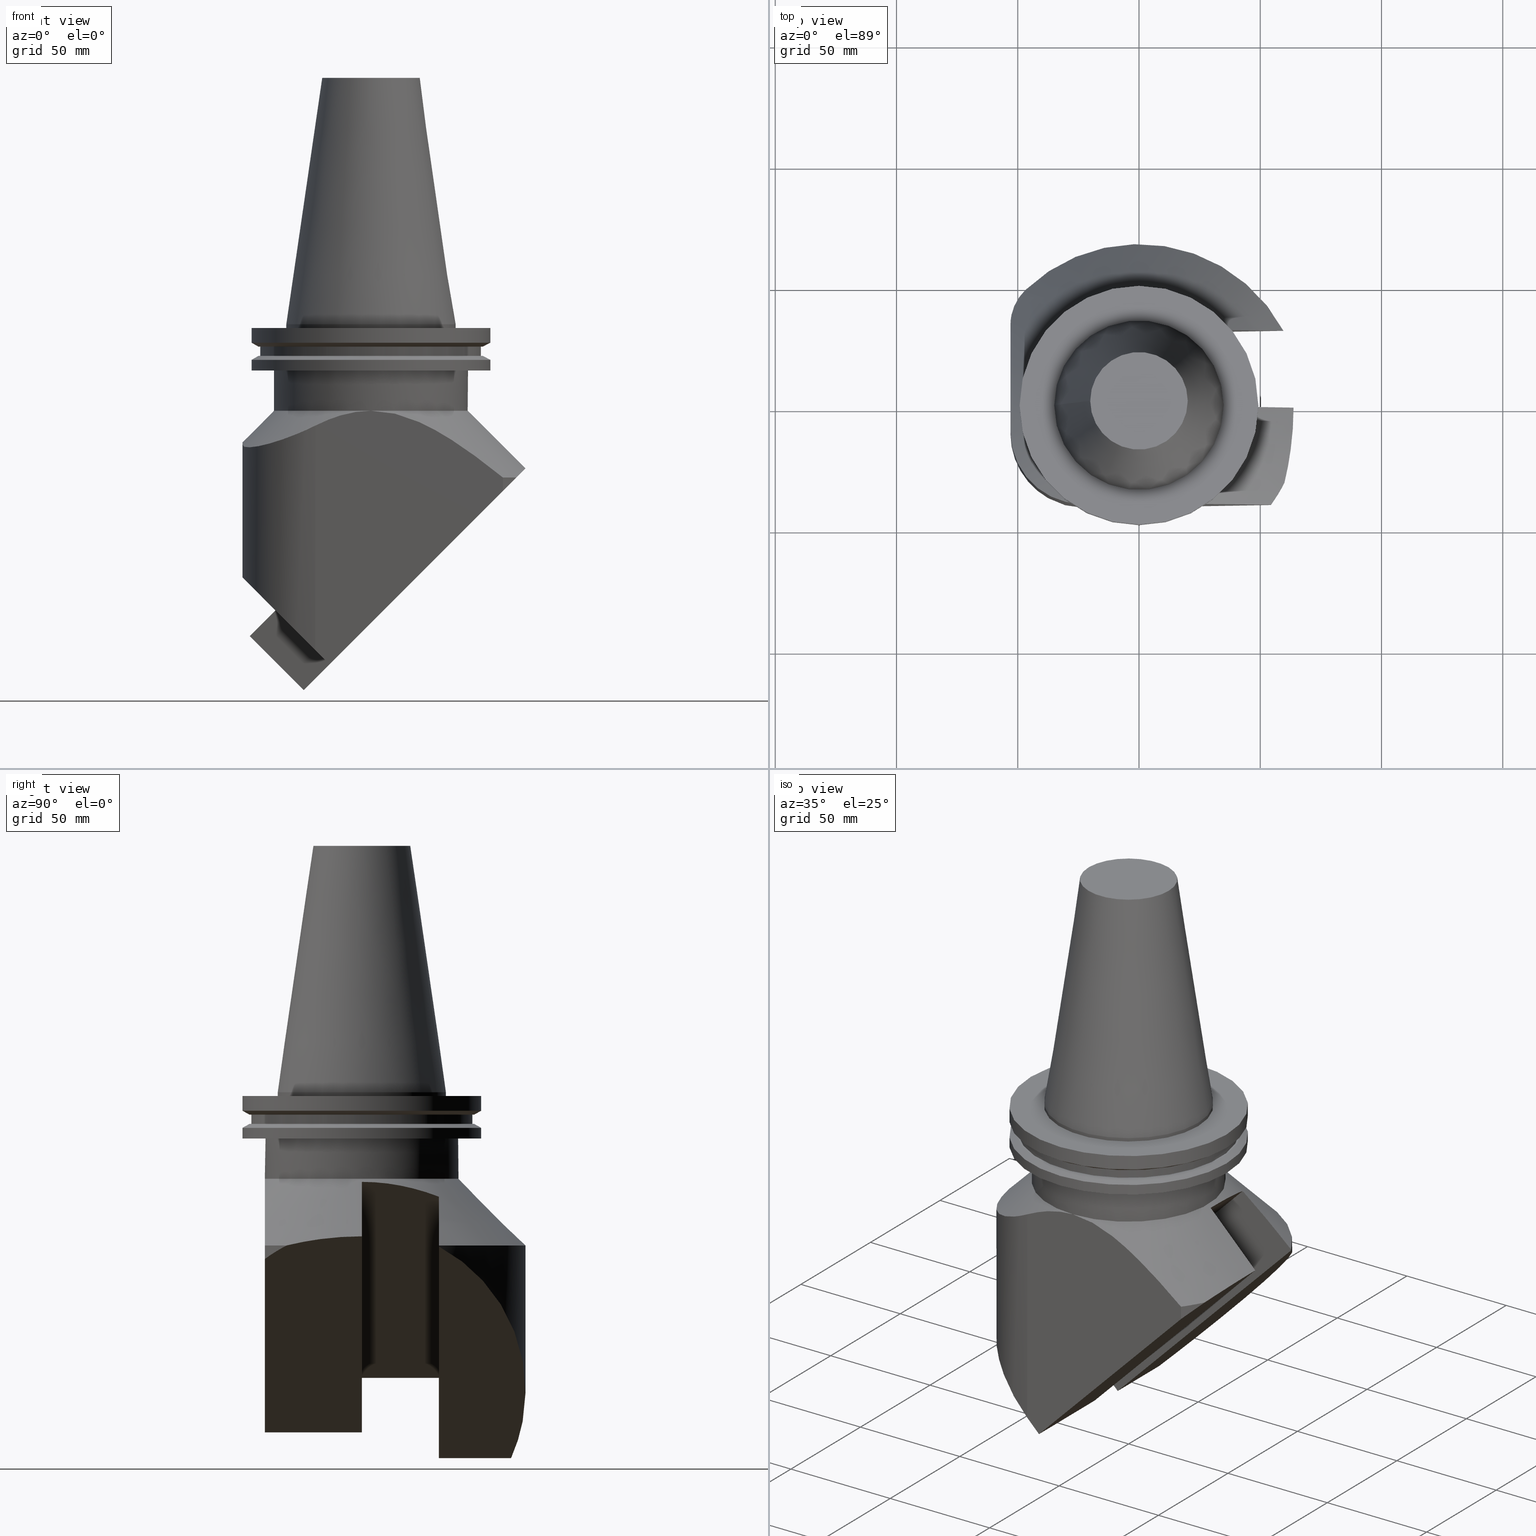
[diagram: canonical four-view strip — front | top / right | iso, engineering-drawing reading convention]
A machine part, canonical four-view strip (front | top / right | iso — engineering-drawing reading convention). The complete STEP part file that produces these views, byte-faithful:
ISO-10303-21;
HEADER;
FILE_DESCRIPTION((''),'1');
FILE_NAME('V:/01_Dxf_Field-HP\X2\FF71FF6FFF8CFF9F5916\X0\2013/BIGKAISER\X2\FF76FF80FF9BFF78FF9E63B28F095206\X0\_BKUS_201803/BCV50Y-45-BH/BCV50Y-45-BH1.250R-5.5.stp','2018-03-14T04:41:13',(''),(''),'Spatial Interop R21 SP3','Kubotek KeyCreator 2011 V10.0.2 (22737)',' ');
FILE_SCHEMA(('automotive_design'));
ENDSEC;
DATA;
#1=MECHANICAL_DESIGN_GEOMETRIC_PRESENTATION_REPRESENTATION(' ',(#10,#11,#12,#13,#14,#15,#16,#17,#18,#19,#20,#21,#22,#23,#24,#25,#26,#27,#28,#29,#30,#31,#32,#33,#34,#35,#36,#37,#38,#39,#40,#41,#42,#43,#44,#45,#46,#47,#48,#49,#50,#51,#52,#53,#54,#55,#56,#57,#58,#59,#60,#61,#62,#63,#64,#65,#66,#67,#68,#69,#70,#71,#72,#73,#74,#75,#76,#77,#78,#79,#80,#81,#82,#83,#84,#85,#86,#87,#88,#89,#90,#91,#92,#93,#94,#95),#6);
#2=PRODUCT_DEFINITION_CONTEXT('',#96,'design');
#3=APPLICATION_PROTOCOL_DEFINITION('INTERNATIONAL STANDARD','automotive_design',1994,#96);
#4=PRODUCT_CATEGORY_RELATIONSHIP('NONE','NONE',#97,#98);
#5=SHAPE_DEFINITION_REPRESENTATION(#99,#100);
#6= (GEOMETRIC_REPRESENTATION_CONTEXT(3)GLOBAL_UNCERTAINTY_ASSIGNED_CONTEXT((#103))GLOBAL_UNIT_ASSIGNED_CONTEXT((#105,#106,#107))REPRESENTATION_CONTEXT('NONE','WORKSPACE'));
#10=STYLED_ITEM('',(#109,#110),#111);
#11=STYLED_ITEM('',(#112),#113);
#12=STYLED_ITEM('',(#114),#115);
#13=STYLED_ITEM('',(#116,#117),#118);
#14=STYLED_ITEM('',(#119),#120);
#15=STYLED_ITEM('',(#121,#122),#123);
#16=STYLED_ITEM('',(#124,#125),#126);
#17=STYLED_ITEM('',(#127),#128);
#18=STYLED_ITEM('',(#129,#130),#131);
#19=STYLED_ITEM('',(#132),#133);
#20=STYLED_ITEM('',(#134),#135);
#21=STYLED_ITEM('',(#136,#137),#138);
#22=STYLED_ITEM('',(#139),#140);
#23=STYLED_ITEM('',(#141),#142);
#24=STYLED_ITEM('',(#143),#144);
#25=STYLED_ITEM('',(#145),#146);
#26=STYLED_ITEM('',(#147,#148),#149);
#27=STYLED_ITEM('',(#150,#151),#152);
#28=STYLED_ITEM('',(#153),#154);
#29=STYLED_ITEM('',(#155),#156);
#30=STYLED_ITEM('',(#157),#158);
#31=STYLED_ITEM('',(#159),#160);
#32=STYLED_ITEM('',(#161,#162),#163);
#33=STYLED_ITEM('',(#164),#165);
#34=STYLED_ITEM('',(#166),#167);
#35=STYLED_ITEM('',(#168),#169);
#36=STYLED_ITEM('',(#170),#171);
#37=STYLED_ITEM('',(#172),#173);
#38=STYLED_ITEM('',(#174),#175);
#39=STYLED_ITEM('',(#176),#177);
#40=STYLED_ITEM('',(#178),#179);
#41=STYLED_ITEM('',(#180,#181),#182);
#42=STYLED_ITEM('',(#183,#184),#185);
#43=STYLED_ITEM('',(#186,#187),#188);
#44=STYLED_ITEM('',(#189,#190),#191);
#45=STYLED_ITEM('',(#192,#193),#194);
#46=STYLED_ITEM('',(#195,#196),#197);
#47=STYLED_ITEM('',(#198),#199);
#48=STYLED_ITEM('',(#200,#201),#202);
#49=STYLED_ITEM('',(#203),#204);
#50=STYLED_ITEM('',(#205),#206);
#51=STYLED_ITEM('',(#207),#208);
#52=STYLED_ITEM('',(#209),#210);
#53=STYLED_ITEM('',(#211),#212);
#54=STYLED_ITEM('',(#213),#214);
#55=STYLED_ITEM('',(#215,#216),#217);
#56=STYLED_ITEM('',(#218),#219);
#57=STYLED_ITEM('',(#220,#221),#222);
#58=STYLED_ITEM('',(#223),#224);
#59=STYLED_ITEM('',(#225),#226);
#60=STYLED_ITEM('',(#227),#228);
#61=STYLED_ITEM('',(#229),#230);
#62=STYLED_ITEM('',(#231),#232);
#63=STYLED_ITEM('',(#233),#234);
#64=STYLED_ITEM('',(#235,#236),#237);
#65=STYLED_ITEM('',(#238),#239);
#66=STYLED_ITEM('',(#240),#241);
#67=STYLED_ITEM('',(#242),#243);
#68=STYLED_ITEM('',(#244),#245);
#69=STYLED_ITEM('',(#246,#247),#248);
#70=STYLED_ITEM('',(#249,#250),#251);
#71=STYLED_ITEM('',(#252),#253);
#72=STYLED_ITEM('',(#254,#255),#256);
#73=STYLED_ITEM('',(#257),#258);
#74=STYLED_ITEM('',(#259),#260);
#75=STYLED_ITEM('',(#261,#262),#263);
#76=STYLED_ITEM('',(#264),#265);
#77=STYLED_ITEM('',(#266),#267);
#78=STYLED_ITEM('',(#268,#269),#270);
#79=STYLED_ITEM('',(#271),#272);
#80=STYLED_ITEM('',(#273,#274),#275);
#81=STYLED_ITEM('',(#276,#277),#278);
#82=STYLED_ITEM('',(#279),#280);
#83=STYLED_ITEM('',(#281),#282);
#84=STYLED_ITEM('',(#283),#284);
#85=STYLED_ITEM('',(#285,#286),#287);
#86=STYLED_ITEM('',(#288,#289),#290);
#87=STYLED_ITEM('',(#291,#292),#293);
#88=STYLED_ITEM('',(#294,#295),#296);
#89=STYLED_ITEM('',(#297),#298);
#90=STYLED_ITEM('',(#299),#300);
#91=STYLED_ITEM('',(#301),#302);
#92=STYLED_ITEM('',(#303),#304);
#93=STYLED_ITEM('',(#305),#306);
#94=STYLED_ITEM('',(#307),#308);
#95=STYLED_ITEM('',(#309),#310);
#96=APPLICATION_CONTEXT(' ');
#97=PRODUCT_CATEGORY('part','NONE');
#98=PRODUCT_RELATED_PRODUCT_CATEGORY('detail',' ',(#311));
#99=PRODUCT_DEFINITION_SHAPE('NONE','NONE',#312);
#100=ADVANCED_BREP_SHAPE_REPRESENTATION('Unnamed[1]',(#263,#313),#6);
#103=UNCERTAINTY_MEASURE_WITH_UNIT(LENGTH_MEASURE(1.0E-006),#105,'','');
#105= (CONVERSION_BASED_UNIT('MILLIMETRE',#316)LENGTH_UNIT()NAMED_UNIT(#319));
#106= (NAMED_UNIT(#321)PLANE_ANGLE_UNIT()SI_UNIT($,.RADIAN.));
#107= (NAMED_UNIT(#321)SOLID_ANGLE_UNIT()SI_UNIT($,.STERADIAN.));
#109=PRESENTATION_STYLE_ASSIGNMENT((#327));
#110=PRESENTATION_STYLE_ASSIGNMENT((#328));
#111=ADVANCED_FACE('Unnamed[1]',(#329,#330),#331,.T.);
#112=PRESENTATION_STYLE_ASSIGNMENT((#332));
#113=EDGE_CURVE('Unnamed[1]',#333,#334,#335,.T.);
#114=PRESENTATION_STYLE_ASSIGNMENT((#336));
#115=EDGE_CURVE('Unnamed[1]',#337,#338,#339,.T.);
#116=PRESENTATION_STYLE_ASSIGNMENT((#340));
#117=PRESENTATION_STYLE_ASSIGNMENT((#341));
#118=ADVANCED_FACE('Unnamed[1]',(#342),#343,.T.);
#119=PRESENTATION_STYLE_ASSIGNMENT((#344));
#120=EDGE_CURVE('Unnamed[1]',#345,#346,#347,.T.);
#121=PRESENTATION_STYLE_ASSIGNMENT((#348));
#122=PRESENTATION_STYLE_ASSIGNMENT((#349));
#123=ADVANCED_FACE('Unnamed[1]',(#350),#351,.F.);
#124=PRESENTATION_STYLE_ASSIGNMENT((#352));
#125=PRESENTATION_STYLE_ASSIGNMENT((#353));
#126=ADVANCED_FACE('Unnamed[1]',(#354,#355),#356,.T.);
#127=PRESENTATION_STYLE_ASSIGNMENT((#357));
#128=EDGE_CURVE('Unnamed[1]',#358,#359,#360,.T.);
#129=PRESENTATION_STYLE_ASSIGNMENT((#361));
#130=PRESENTATION_STYLE_ASSIGNMENT((#362));
#131=ADVANCED_FACE('Unnamed[1]',(#363),#364,.T.);
#132=PRESENTATION_STYLE_ASSIGNMENT((#365));
#133=EDGE_CURVE('Unnamed[1]',#366,#367,#368,.T.);
#134=PRESENTATION_STYLE_ASSIGNMENT((#369));
#135=EDGE_CURVE('Unnamed[1]',#370,#370,#371,.T.);
#136=PRESENTATION_STYLE_ASSIGNMENT((#372));
#137=PRESENTATION_STYLE_ASSIGNMENT((#373));
#138=ADVANCED_FACE('Unnamed[1]',(#374,#375),#376,.T.);
#139=PRESENTATION_STYLE_ASSIGNMENT((#377));
#140=EDGE_CURVE('Unnamed[1]',#378,#379,#380,.T.);
#141=PRESENTATION_STYLE_ASSIGNMENT((#381));
#142=EDGE_CURVE('Unnamed[1]',#345,#378,#382,.T.);
#143=PRESENTATION_STYLE_ASSIGNMENT((#383));
#144=EDGE_CURVE('Unnamed[1]',#384,#385,#386,.T.);
#145=PRESENTATION_STYLE_ASSIGNMENT((#387));
#146=EDGE_CURVE('Unnamed[1]',#388,#389,#390,.T.);
#147=PRESENTATION_STYLE_ASSIGNMENT((#391));
#148=PRESENTATION_STYLE_ASSIGNMENT((#392));
#149=ADVANCED_FACE('Unnamed[1]',(#393,#394),#395,.T.);
#150=PRESENTATION_STYLE_ASSIGNMENT((#396));
#151=PRESENTATION_STYLE_ASSIGNMENT((#397));
#152=ADVANCED_FACE('Unnamed[1]',(#398),#399,.F.);
#153=PRESENTATION_STYLE_ASSIGNMENT((#400));
#154=EDGE_CURVE('Unnamed[1]',#401,#402,#403,.T.);
#155=PRESENTATION_STYLE_ASSIGNMENT((#404));
#156=EDGE_CURVE('Unnamed[1]',#378,#405,#406,.T.);
#157=PRESENTATION_STYLE_ASSIGNMENT((#407));
#158=EDGE_CURVE('Unnamed[1]',#408,#408,#409,.T.);
#159=PRESENTATION_STYLE_ASSIGNMENT((#410));
#160=EDGE_CURVE('Unnamed[1]',#411,#411,#412,.T.);
#161=PRESENTATION_STYLE_ASSIGNMENT((#413));
#162=PRESENTATION_STYLE_ASSIGNMENT((#414));
#163=ADVANCED_FACE('Unnamed[1]',(#415),#416,.T.);
#164=PRESENTATION_STYLE_ASSIGNMENT((#417));
#165=EDGE_CURVE('Unnamed[1]',#385,#418,#419,.T.);
#166=PRESENTATION_STYLE_ASSIGNMENT((#420));
#167=EDGE_CURVE('Unnamed[1]',#334,#421,#422,.T.);
#168=PRESENTATION_STYLE_ASSIGNMENT((#423));
#169=EDGE_CURVE('Unnamed[1]',#424,#424,#425,.T.);
#170=PRESENTATION_STYLE_ASSIGNMENT((#426));
#171=EDGE_CURVE('Unnamed[1]',#346,#427,#428,.T.);
#172=PRESENTATION_STYLE_ASSIGNMENT((#429));
#173=EDGE_CURVE('Unnamed[1]',#430,#367,#431,.T.);
#174=PRESENTATION_STYLE_ASSIGNMENT((#432));
#175=EDGE_CURVE('Unnamed[1]',#421,#433,#434,.T.);
#176=PRESENTATION_STYLE_ASSIGNMENT((#435));
#177=EDGE_CURVE('Unnamed[1]',#436,#436,#437,.T.);
#178=PRESENTATION_STYLE_ASSIGNMENT((#438));
#179=EDGE_CURVE('Unnamed[1]',#402,#402,#439,.T.);
#180=PRESENTATION_STYLE_ASSIGNMENT((#440));
#181=PRESENTATION_STYLE_ASSIGNMENT((#441));
#182=ADVANCED_FACE('Unnamed[1]',(#442,#443),#444,.T.);
#183=PRESENTATION_STYLE_ASSIGNMENT((#445));
#184=PRESENTATION_STYLE_ASSIGNMENT((#446));
#185=ADVANCED_FACE('Unnamed[1]',(#447),#448,.F.);
#186=PRESENTATION_STYLE_ASSIGNMENT((#449));
#187=PRESENTATION_STYLE_ASSIGNMENT((#450));
#188=ADVANCED_FACE('Unnamed[1]',(#451,#452),#453,.T.);
#189=PRESENTATION_STYLE_ASSIGNMENT((#454));
#190=PRESENTATION_STYLE_ASSIGNMENT((#455));
#191=ADVANCED_FACE('Unnamed[1]',(#456),#457,.T.);
#192=PRESENTATION_STYLE_ASSIGNMENT((#458));
#193=PRESENTATION_STYLE_ASSIGNMENT((#459));
#194=ADVANCED_FACE('Unnamed[1]',(#460),#461,.F.);
#195=PRESENTATION_STYLE_ASSIGNMENT((#462));
#196=PRESENTATION_STYLE_ASSIGNMENT((#463));
#197=ADVANCED_FACE('Unnamed[1]',(#464),#465,.F.);
#198=PRESENTATION_STYLE_ASSIGNMENT((#466));
#199=EDGE_CURVE('Unnamed[1]',#337,#467,#468,.T.);
#200=PRESENTATION_STYLE_ASSIGNMENT((#469));
#201=PRESENTATION_STYLE_ASSIGNMENT((#470));
#202=ADVANCED_FACE('Unnamed[1]',(#471),#472,.T.);
#203=PRESENTATION_STYLE_ASSIGNMENT((#473));
#204=EDGE_CURVE('Unnamed[1]',#427,#333,#474,.T.);
#205=PRESENTATION_STYLE_ASSIGNMENT((#475));
#206=EDGE_CURVE('Unnamed[1]',#405,#430,#476,.T.);
#207=PRESENTATION_STYLE_ASSIGNMENT((#477));
#208=EDGE_CURVE('Unnamed[1]',#478,#478,#479,.T.);
#209=PRESENTATION_STYLE_ASSIGNMENT((#480));
#210=EDGE_CURVE('Unnamed[1]',#481,#482,#483,.T.);
#211=PRESENTATION_STYLE_ASSIGNMENT((#484));
#212=EDGE_CURVE('Unnamed[1]',#421,#388,#485,.T.);
#213=PRESENTATION_STYLE_ASSIGNMENT((#486));
#214=EDGE_CURVE('Unnamed[1]',#402,#338,#487,.T.);
#215=PRESENTATION_STYLE_ASSIGNMENT((#488));
#216=PRESENTATION_STYLE_ASSIGNMENT((#489));
#217=ADVANCED_FACE('Unnamed[1]',(#490,#491),#492,.T.);
#218=PRESENTATION_STYLE_ASSIGNMENT((#493));
#219=EDGE_CURVE('Unnamed[1]',#427,#481,#494,.T.);
#220=PRESENTATION_STYLE_ASSIGNMENT((#495));
#221=PRESENTATION_STYLE_ASSIGNMENT((#496));
#222=ADVANCED_FACE('Unnamed[1]',(#497,#498),#499,.T.);
#223=PRESENTATION_STYLE_ASSIGNMENT((#500));
#224=EDGE_CURVE('Unnamed[1]',#501,#501,#502,.T.);
#225=PRESENTATION_STYLE_ASSIGNMENT((#503));
#226=EDGE_CURVE('Unnamed[1]',#358,#389,#504,.T.);
#227=PRESENTATION_STYLE_ASSIGNMENT((#505));
#228=EDGE_CURVE('Unnamed[1]',#366,#384,#506,.T.);
#229=PRESENTATION_STYLE_ASSIGNMENT((#507));
#230=EDGE_CURVE('Unnamed[1]',#508,#359,#509,.T.);
#231=PRESENTATION_STYLE_ASSIGNMENT((#510));
#232=EDGE_CURVE('Unnamed[1]',#418,#337,#511,.T.);
#233=PRESENTATION_STYLE_ASSIGNMENT((#512));
#234=EDGE_CURVE('Unnamed[1]',#513,#513,#514,.T.);
#235=PRESENTATION_STYLE_ASSIGNMENT((#515));
#236=PRESENTATION_STYLE_ASSIGNMENT((#516));
#237=ADVANCED_FACE('Unnamed[1]',(#517),#518,.T.);
#238=PRESENTATION_STYLE_ASSIGNMENT((#519));
#239=EDGE_CURVE('Unnamed[1]',#379,#366,#520,.T.);
#240=PRESENTATION_STYLE_ASSIGNMENT((#521));
#241=EDGE_CURVE('Unnamed[1]',#522,#481,#523,.T.);
#242=PRESENTATION_STYLE_ASSIGNMENT((#524));
#243=EDGE_CURVE('Unnamed[1]',#525,#525,#526,.T.);
#244=PRESENTATION_STYLE_ASSIGNMENT((#527));
#245=EDGE_CURVE('Unnamed[1]',#508,#358,#528,.T.);
#246=PRESENTATION_STYLE_ASSIGNMENT((#529));
#247=PRESENTATION_STYLE_ASSIGNMENT((#530));
#248=ADVANCED_FACE('Unnamed[1]',(#531,#532),#533,.T.);
#249=PRESENTATION_STYLE_ASSIGNMENT((#534));
#250=PRESENTATION_STYLE_ASSIGNMENT((#535));
#251=ADVANCED_FACE('Unnamed[1]',(#536),#537,.F.);
#252=PRESENTATION_STYLE_ASSIGNMENT((#538));
#253=EDGE_CURVE('Unnamed[1]',#367,#401,#539,.T.);
#254=PRESENTATION_STYLE_ASSIGNMENT((#540));
#255=PRESENTATION_STYLE_ASSIGNMENT((#541));
#256=ADVANCED_FACE('Unnamed[1]',(#542,#543),#544,.T.);
#257=PRESENTATION_STYLE_ASSIGNMENT((#545));
#258=EDGE_CURVE('Unnamed[1]',#482,#467,#546,.T.);
#259=PRESENTATION_STYLE_ASSIGNMENT((#547));
#260=EDGE_CURVE('Unnamed[1]',#384,#401,#548,.T.);
#261=PRESENTATION_STYLE_ASSIGNMENT((#549));
#262=PRESENTATION_STYLE_ASSIGNMENT((#550));
#263=MANIFOLD_SOLID_BREP('Unnamed[1]',#551);
#264=PRESENTATION_STYLE_ASSIGNMENT((#552));
#265=EDGE_CURVE('Unnamed[1]',#389,#346,#553,.T.);
#266=PRESENTATION_STYLE_ASSIGNMENT((#554));
#267=EDGE_CURVE('Unnamed[1]',#379,#430,#555,.T.);
#268=PRESENTATION_STYLE_ASSIGNMENT((#556));
#269=PRESENTATION_STYLE_ASSIGNMENT((#557));
#270=ADVANCED_FACE('Unnamed[1]',(#558),#559,.T.);
#271=PRESENTATION_STYLE_ASSIGNMENT((#560));
#272=EDGE_CURVE('Unnamed[1]',#385,#482,#561,.T.);
#273=PRESENTATION_STYLE_ASSIGNMENT((#562));
#274=PRESENTATION_STYLE_ASSIGNMENT((#563));
#275=ADVANCED_FACE('Unnamed[1]',(#564),#565,.T.);
#276=PRESENTATION_STYLE_ASSIGNMENT((#566));
#277=PRESENTATION_STYLE_ASSIGNMENT((#567));
#278=ADVANCED_FACE('Unnamed[1]',(#568,#569),#570,.T.);
#279=PRESENTATION_STYLE_ASSIGNMENT((#571));
#280=EDGE_CURVE('Unnamed[1]',#388,#433,#572,.T.);
#281=PRESENTATION_STYLE_ASSIGNMENT((#573));
#282=EDGE_CURVE('Unnamed[1]',#522,#333,#574,.T.);
#283=PRESENTATION_STYLE_ASSIGNMENT((#575));
#284=EDGE_CURVE('Unnamed[1]',#359,#345,#576,.T.);
#285=PRESENTATION_STYLE_ASSIGNMENT((#577));
#286=PRESENTATION_STYLE_ASSIGNMENT((#578));
#287=ADVANCED_FACE('Unnamed[1]',(#579),#580,.F.);
#288=PRESENTATION_STYLE_ASSIGNMENT((#581));
#289=PRESENTATION_STYLE_ASSIGNMENT((#582));
#290=ADVANCED_FACE('Unnamed[1]',(#583),#584,.F.);
#291=PRESENTATION_STYLE_ASSIGNMENT((#585));
#292=PRESENTATION_STYLE_ASSIGNMENT((#586));
#293=ADVANCED_FACE('Unnamed[1]',(#587,#588),#589,.T.);
#294=PRESENTATION_STYLE_ASSIGNMENT((#590));
#295=PRESENTATION_STYLE_ASSIGNMENT((#591));
#296=ADVANCED_FACE('Unnamed[1]',(#592),#593,.F.);
#297=PRESENTATION_STYLE_ASSIGNMENT((#594));
#298=EDGE_CURVE('Unnamed[1]',#467,#522,#595,.T.);
#299=PRESENTATION_STYLE_ASSIGNMENT((#596));
#300=EDGE_CURVE('Unnamed[1]',#405,#334,#597,.T.);
#301=PRESENTATION_STYLE_ASSIGNMENT((#598));
#302=EDGE_CURVE('Unnamed[1]',#433,#508,#599,.T.);
#303=PRESENTATION_STYLE_ASSIGNMENT((#600));
#304=EDGE_CURVE('Unnamed[1]',#601,#601,#602,.T.);
#305=PRESENTATION_STYLE_ASSIGNMENT((#603));
#306=EDGE_CURVE('Unnamed[1]',#604,#604,#605,.T.);
#307=PRESENTATION_STYLE_ASSIGNMENT((#606));
#308=EDGE_CURVE('Unnamed[1]',#338,#418,#607,.T.);
#309=PRESENTATION_STYLE_ASSIGNMENT((#608));
#310=EDGE_CURVE('Unnamed[1]',#609,#609,#610,.T.);
#311=PRODUCT('Unnamed[1]','Unnamed[1]','PART-Unnamed[1]-DESC',(#611));
#312=PRODUCT_DEFINITION('NONE','NONE',#612,#2);
#313=AXIS2_PLACEMENT_3D('',#613,#614,#615);
#316=LENGTH_MEASURE_WITH_UNIT(LENGTH_MEASURE(1.0),#616);
#319=DIMENSIONAL_EXPONENTS(1.0,0.0,0.0,0.0,0.0,0.0,0.0);
#321=DIMENSIONAL_EXPONENTS(0.0,0.0,0.0,0.0,0.0,0.0,0.0);
#327=SURFACE_STYLE_USAGE(.BOTH.,#617);
#328=CURVE_STYLE('',#618,POSITIVE_LENGTH_MEASURE(1000.0),#619);
#329=FACE_BOUND('',#620,.T.);
#330=FACE_BOUND('',#621,.T.);
#331=CYLINDRICAL_SURFACE('',#622,45.645);
#332=CURVE_STYLE('',#623,POSITIVE_LENGTH_MEASURE(1000.0),#624);
#333=VERTEX_POINT('',#625);
#334=VERTEX_POINT('',#626);
#335=(B_SPLINE_CURVE(2,(#628,#629,#630),.UNSPECIFIED.,.F.,.F.)B_SPLINE_CURVE_WITH_KNOTS((3,3),(0.0,44.7367097655909),.UNSPECIFIED.)RATIONAL_B_SPLINE_CURVE((1.0,1.05847940210866,1.0))BOUNDED_CURVE()REPRESENTATION_ITEM('')GEOMETRIC_REPRESENTATION_ITEM()CURVE());
#336=CURVE_STYLE('',#637,POSITIVE_LENGTH_MEASURE(1000.0),#638);
#337=VERTEX_POINT('',#639);
#338=VERTEX_POINT('',#640);
#339=CIRCLE('',#641,67.5000000000005);
#340=SURFACE_STYLE_USAGE(.BOTH.,#642);
#341=CURVE_STYLE('',#643,POSITIVE_LENGTH_MEASURE(1000.0),#644);
#342=FACE_OUTER_BOUND('',#645,.T.);
#343=CONICAL_SURFACE('',#646,53.75,0.785398163397432);
#344=CURVE_STYLE('',#647,POSITIVE_LENGTH_MEASURE(1000.0),#648);
#345=VERTEX_POINT('',#649);
#346=VERTEX_POINT('',#650);
#347=LINE('',#651,#652);
#348=SURFACE_STYLE_USAGE(.BOTH.,#653);
#349=CURVE_STYLE('',#654,POSITIVE_LENGTH_MEASURE(1000.0),#655);
#350=FACE_OUTER_BOUND('',#656,.T.);
#351=PLANE('',#657);
#352=SURFACE_STYLE_USAGE(.BOTH.,#658);
#353=CURVE_STYLE('',#659,POSITIVE_LENGTH_MEASURE(1000.0),#660);
#354=FACE_BOUND('',#661,.T.);
#355=FACE_BOUND('',#662,.T.);
#356=CYLINDRICAL_SURFACE('',#663,34.925);
#357=CURVE_STYLE('',#664,POSITIVE_LENGTH_MEASURE(1000.0),#665);
#358=VERTEX_POINT('',#666);
#359=VERTEX_POINT('',#667);
#360=ELLIPSE('',#668,28.2842712474601,19.9999999999986);
#361=SURFACE_STYLE_USAGE(.BOTH.,#669);
#362=CURVE_STYLE('',#670,POSITIVE_LENGTH_MEASURE(1000.0),#671);
#363=FACE_OUTER_BOUND('',#672,.T.);
#364=PLANE('',#673);
#365=CURVE_STYLE('',#674,POSITIVE_LENGTH_MEASURE(1000.0),#675);
#366=VERTEX_POINT('',#676);
#367=VERTEX_POINT('',#677);
#368=LINE('',#678,#679);
#369=CURVE_STYLE('',#680,POSITIVE_LENGTH_MEASURE(1000.0),#681);
#370=VERTEX_POINT('',#682);
#371=CIRCLE('',#683,45.645);
#372=SURFACE_STYLE_USAGE(.BOTH.,#684);
#373=CURVE_STYLE('',#685,POSITIVE_LENGTH_MEASURE(1000.0),#686);
#374=FACE_BOUND('',#687,.T.);
#375=FACE_BOUND('',#688,.T.);
#376=CONICAL_SURFACE('',#689,27.5166666648608,0.144812498273746);
#377=CURVE_STYLE('',#690,POSITIVE_LENGTH_MEASURE(1000.0),#691);
#378=VERTEX_POINT('',#692);
#379=VERTEX_POINT('',#693);
#380=ELLIPSE('',#694,28.2842712474641,19.9999999999986);
#381=CURVE_STYLE('',#695,POSITIVE_LENGTH_MEASURE(1000.0),#696);
#382=ELLIPSE('',#697,95.459415460198,67.5000000000011);
#383=CURVE_STYLE('',#698,POSITIVE_LENGTH_MEASURE(1000.0),#699);
#384=VERTEX_POINT('',#700);
#385=VERTEX_POINT('',#701);
#386=LINE('',#702,#703);
#387=CURVE_STYLE('',#704,POSITIVE_LENGTH_MEASURE(1000.0),#705);
#388=VERTEX_POINT('',#706);
#389=VERTEX_POINT('',#707);
#390=LINE('',#708,#709);
#391=SURFACE_STYLE_USAGE(.BOTH.,#710);
#392=CURVE_STYLE('',#711,POSITIVE_LENGTH_MEASURE(1000.0),#712);
#393=FACE_BOUND('',#713,.T.);
#394=FACE_BOUND('',#714,.T.);
#395=CYLINDRICAL_SURFACE('',#715,49.2125);
#396=SURFACE_STYLE_USAGE(.BOTH.,#716);
#397=CURVE_STYLE('',#717,POSITIVE_LENGTH_MEASURE(1000.0),#718);
#398=FACE_OUTER_BOUND('',#719,.T.);
#399=PLANE('',#720);
#400=CURVE_STYLE('',#721,POSITIVE_LENGTH_MEASURE(1000.0),#722);
#401=VERTEX_POINT('',#723);
#402=VERTEX_POINT('',#724);
#403=(B_SPLINE_CURVE(2,(#726,#727,#728,#729,#730),.UNSPECIFIED.,.F.,.F.)B_SPLINE_CURVE_WITH_KNOTS((3,2,3),(0.0,61.7520881841186,123.504176368237),.UNSPECIFIED.)RATIONAL_B_SPLINE_CURVE((1.0,1.15920231193637,1.0,1.15920231193637,1.0))BOUNDED_CURVE()REPRESENTATION_ITEM('')GEOMETRIC_REPRESENTATION_ITEM()CURVE());
#404=CURVE_STYLE('',#737,POSITIVE_LENGTH_MEASURE(1000.0),#738);
#405=VERTEX_POINT('',#739);
#406=LINE('',#740,#741);
#407=CURVE_STYLE('',#742,POSITIVE_LENGTH_MEASURE(1000.0),#743);
#408=VERTEX_POINT('',#744);
#409=CIRCLE('',#745,49.2125);
#410=CURVE_STYLE('',#746,POSITIVE_LENGTH_MEASURE(1000.0),#747);
#411=VERTEX_POINT('',#748);
#412=CIRCLE('',#749,39.9999999999994);
#413=SURFACE_STYLE_USAGE(.BOTH.,#750);
#414=CURVE_STYLE('',#751,POSITIVE_LENGTH_MEASURE(1000.0),#752);
#415=FACE_OUTER_BOUND('',#753,.T.);
#416=CYLINDRICAL_SURFACE('',#754,19.9999999999986);
#417=CURVE_STYLE('',#755,POSITIVE_LENGTH_MEASURE(1000.0),#756);
#418=VERTEX_POINT('',#757);
#419=LINE('',#758,#759);
#420=CURVE_STYLE('',#760,POSITIVE_LENGTH_MEASURE(1000.0),#761);
#421=VERTEX_POINT('',#762);
#422=LINE('',#763,#764);
#423=CURVE_STYLE('',#765,POSITIVE_LENGTH_MEASURE(1000.0),#766);
#424=VERTEX_POINT('',#767);
#425=CIRCLE('',#768,20.1083333297217);
#426=CURVE_STYLE('',#769,POSITIVE_LENGTH_MEASURE(1000.0),#770);
#427=VERTEX_POINT('',#771);
#428=LINE('',#772,#773);
#429=CURVE_STYLE('',#774,POSITIVE_LENGTH_MEASURE(1000.0),#775);
#430=VERTEX_POINT('',#776);
#431=(B_SPLINE_CURVE(2,(#778,#779,#780),.UNSPECIFIED.,.F.,.F.)B_SPLINE_CURVE_WITH_KNOTS((3,3),(0.0,88.4872872225188),.UNSPECIFIED.)RATIONAL_B_SPLINE_CURVE((1.0,1.27358490566038,1.0))BOUNDED_CURVE()REPRESENTATION_ITEM('')GEOMETRIC_REPRESENTATION_ITEM()CURVE());
#432=CURVE_STYLE('',#787,POSITIVE_LENGTH_MEASURE(1000.0),#788);
#433=VERTEX_POINT('',#789);
#434=ELLIPSE('',#790,95.4594154601865,67.5000000000011);
#435=CURVE_STYLE('',#791,POSITIVE_LENGTH_MEASURE(1000.0),#792);
#436=VERTEX_POINT('',#793);
#437=CIRCLE('',#794,46.43053755);
#438=CURVE_STYLE('',#795,POSITIVE_LENGTH_MEASURE(1000.0),#796);
#439=CIRCLE('',#797,39.9999999999994);
#440=SURFACE_STYLE_USAGE(.BOTH.,#798);
#441=CURVE_STYLE('',#799,POSITIVE_LENGTH_MEASURE(1000.0),#800);
#442=FACE_BOUND('',#801,.T.);
#443=FACE_BOUND('',#802,.T.);
#444=CYLINDRICAL_SURFACE('',#803,49.2125);
#445=SURFACE_STYLE_USAGE(.BOTH.,#804);
#446=CURVE_STYLE('',#805,POSITIVE_LENGTH_MEASURE(1000.0),#806);
#447=FACE_OUTER_BOUND('',#807,.T.);
#448=PLANE('',#808);
#449=SURFACE_STYLE_USAGE(.BOTH.,#809);
#450=CURVE_STYLE('',#810,POSITIVE_LENGTH_MEASURE(1000.0),#811);
#451=FACE_OUTER_BOUND('',#812,.T.);
#452=FACE_BOUND('',#813,.T.);
#453=PLANE('',#814);
#454=SURFACE_STYLE_USAGE(.BOTH.,#815);
#455=CURVE_STYLE('',#816,POSITIVE_LENGTH_MEASURE(1000.0),#817);
#456=FACE_OUTER_BOUND('',#818,.T.);
#457=CYLINDRICAL_SURFACE('',#819,67.5000000000011);
#458=SURFACE_STYLE_USAGE(.BOTH.,#820);
#459=CURVE_STYLE('',#821,POSITIVE_LENGTH_MEASURE(1000.0),#822);
#460=FACE_OUTER_BOUND('',#823,.T.);
#461=PLANE('',#824);
#462=SURFACE_STYLE_USAGE(.BOTH.,#825);
#463=CURVE_STYLE('',#826,POSITIVE_LENGTH_MEASURE(1000.0),#827);
#464=FACE_OUTER_BOUND('',#828,.T.);
#465=PLANE('',#829);
#466=CURVE_STYLE('',#830,POSITIVE_LENGTH_MEASURE(1000.0),#831);
#467=VERTEX_POINT('',#832);
#468=B_SPLINE_CURVE_WITH_KNOTS('',2,(#833,#834,#835,#836,#837),.UNSPECIFIED.,.F.,.F.,(3,2,3),(0.0,31.5550764550768,63.1101529101535),.UNSPECIFIED.);
#469=SURFACE_STYLE_USAGE(.BOTH.,#838);
#470=CURVE_STYLE('',#839,POSITIVE_LENGTH_MEASURE(1000.0),#840);
#471=FACE_OUTER_BOUND('',#841,.T.);
#472=CYLINDRICAL_SURFACE('',#842,19.9999999999986);
#473=CURVE_STYLE('',#843,POSITIVE_LENGTH_MEASURE(1000.0),#844);
#474=LINE('',#845,#846);
#475=CURVE_STYLE('',#847,POSITIVE_LENGTH_MEASURE(1000.0),#848);
#476=B_SPLINE_CURVE_WITH_KNOTS('',3,(#849,#850,#851,#852,#853,#854,#855,#856,#857,#858,#859,#860,#861,#862,#863,#864,#865,#866),.UNSPECIFIED.,.F.,.F.,(4,2,2,2,2,2,2,2,4),(49.1526923164775,51.485095834588,53.8174993526985,56.1499028708089,58.4823063889194,60.8147099070299,63.579342261525,66.34397461602,69.108606970515),.UNSPECIFIED.);
#477=CURVE_STYLE('',#867,POSITIVE_LENGTH_MEASURE(1000.0),#868);
#478=VERTEX_POINT('',#869);
#479=CIRCLE('',#870,45.645);
#480=CURVE_STYLE('',#871,POSITIVE_LENGTH_MEASURE(1000.0),#872);
#481=VERTEX_POINT('',#873);
#482=VERTEX_POINT('',#874);
#483=LINE('',#875,#876);
#484=CURVE_STYLE('',#877,POSITIVE_LENGTH_MEASURE(1000.0),#878);
#485=LINE('',#879,#880);
#486=CURVE_STYLE('',#881,POSITIVE_LENGTH_MEASURE(1000.0),#882);
#487=(B_SPLINE_CURVE(2,(#884,#885,#886,#887,#888),.UNSPECIFIED.,.F.,.F.)B_SPLINE_CURVE_WITH_KNOTS((3,2,3),(0.0,61.7520881841186,123.504176368237),.UNSPECIFIED.)RATIONAL_B_SPLINE_CURVE((1.0,1.15920231193637,1.0,1.15920231193637,1.0))BOUNDED_CURVE()REPRESENTATION_ITEM('')GEOMETRIC_REPRESENTATION_ITEM()CURVE());
#488=SURFACE_STYLE_USAGE(.BOTH.,#895);
#489=CURVE_STYLE('',#896,POSITIVE_LENGTH_MEASURE(1000.0),#897);
#490=FACE_BOUND('',#898,.T.);
#491=FACE_BOUND('',#899,.T.);
#492=CONICAL_SURFACE('',#900,47.821518775,1.04719755103023);
#493=CURVE_STYLE('',#901,POSITIVE_LENGTH_MEASURE(1000.0),#902);
#494=LINE('',#903,#904);
#495=SURFACE_STYLE_USAGE(.BOTH.,#905);
#496=CURVE_STYLE('',#906,POSITIVE_LENGTH_MEASURE(1000.0),#907);
#497=FACE_BOUND('',#908,.T.);
#498=FACE_OUTER_BOUND('',#909,.T.);
#499=PLANE('',#910);
#500=CURVE_STYLE('',#911,POSITIVE_LENGTH_MEASURE(1000.0),#912);
#501=VERTEX_POINT('',#913);
#502=CIRCLE('',#914,46.43053755);
#503=CURVE_STYLE('',#915,POSITIVE_LENGTH_MEASURE(1000.0),#916);
#504=LINE('',#917,#918);
#505=CURVE_STYLE('',#919,POSITIVE_LENGTH_MEASURE(1000.0),#920);
#506=ELLIPSE('',#921,42.4264068712006,30.0000000000011);
#507=CURVE_STYLE('',#922,POSITIVE_LENGTH_MEASURE(1000.0),#923);
#508=VERTEX_POINT('',#924);
#509=LINE('',#925,#926);
#510=CURVE_STYLE('',#927,POSITIVE_LENGTH_MEASURE(1000.0),#928);
#511=ELLIPSE('',#929,95.4594154601865,67.5000000000011);
#512=CURVE_STYLE('',#930,POSITIVE_LENGTH_MEASURE(1000.0),#931);
#513=VERTEX_POINT('',#932);
#514=CIRCLE('',#933,49.2125);
#515=SURFACE_STYLE_USAGE(.BOTH.,#934);
#516=CURVE_STYLE('',#935,POSITIVE_LENGTH_MEASURE(1000.0),#936);
#517=FACE_OUTER_BOUND('',#937,.T.);
#518=PLANE('',#938);
#519=CURVE_STYLE('',#939,POSITIVE_LENGTH_MEASURE(1000.0),#940);
#520=LINE('',#941,#942);
#521=CURVE_STYLE('',#943,POSITIVE_LENGTH_MEASURE(1000.0),#944);
#522=VERTEX_POINT('',#945);
#523=LINE('',#946,#947);
#524=CURVE_STYLE('',#948,POSITIVE_LENGTH_MEASURE(1000.0),#949);
#525=VERTEX_POINT('',#950);
#526=CIRCLE('',#951,34.925);
#527=CURVE_STYLE('',#952,POSITIVE_LENGTH_MEASURE(1000.0),#953);
#528=ELLIPSE('',#954,28.2842712474599,19.9999999999986);
#529=SURFACE_STYLE_USAGE(.BOTH.,#955);
#530=CURVE_STYLE('',#956,POSITIVE_LENGTH_MEASURE(1000.0),#957);
#531=FACE_OUTER_BOUND('',#958,.T.);
#532=FACE_BOUND('',#959,.T.);
#533=PLANE('',#960);
#534=SURFACE_STYLE_USAGE(.BOTH.,#961);
#535=CURVE_STYLE('',#962,POSITIVE_LENGTH_MEASURE(1000.0),#963);
#536=FACE_OUTER_BOUND('',#964,.T.);
#537=PLANE('',#965);
#538=CURVE_STYLE('',#966,POSITIVE_LENGTH_MEASURE(1000.0),#967);
#539=B_SPLINE_CURVE_WITH_KNOTS('',3,(#968,#969,#970,#971,#972,#973,#974,#975,#976,#977,#978,#979,#980,#981,#982,#983,#984,#985,#986,#987,#988,#989,#990,#991,#992,#993),.UNSPECIFIED.,.F.,.F.,(4,2,2,2,2,2,2,2,2,2,2,2,4),(35.1092462426969,39.3614813545177,43.6137164663384,47.7499436090603,51.8861707517821,56.0223978945039,60.1586250372258,64.4660943871932,68.7735637371606,73.081033087128,77.3885024370955,82.162412155041,86.9363218729865),.UNSPECIFIED.);
#540=SURFACE_STYLE_USAGE(.BOTH.,#994);
#541=CURVE_STYLE('',#995,POSITIVE_LENGTH_MEASURE(1000.0),#996);
#542=FACE_BOUND('',#997,.T.);
#543=FACE_BOUND('',#998,.T.);
#544=CONICAL_SURFACE('',#999,47.821518775,1.04719755103023);
#545=CURVE_STYLE('',#1000,POSITIVE_LENGTH_MEASURE(1000.0),#1001);
#546=LINE('',#1002,#1003);
#547=CURVE_STYLE('',#1004,POSITIVE_LENGTH_MEASURE(1000.0),#1005);
#548=LINE('',#1006,#1007);
#549=SURFACE_STYLE_USAGE(.BOTH.,#1008);
#550=CURVE_STYLE('',#1009,POSITIVE_LENGTH_MEASURE(1000.0),#1010);
#551=CLOSED_SHELL('',(#251,#131,#185,#152,#194,#287,#118,#270,#197,#123,#296,#275,#191,#163,#202,#290,#237,#138,#126,#248,#149,#256,#222,#111,#293,#217,#182,#188,#278));
#552=CURVE_STYLE('',#1011,POSITIVE_LENGTH_MEASURE(1000.0),#1012);
#553=LINE('',#1013,#1014);
#554=CURVE_STYLE('',#1015,POSITIVE_LENGTH_MEASURE(1000.0),#1016);
#555=LINE('',#1017,#1018);
#556=SURFACE_STYLE_USAGE(.BOTH.,#1019);
#557=CURVE_STYLE('',#1020,POSITIVE_LENGTH_MEASURE(1000.0),#1021);
#558=FACE_OUTER_BOUND('',#1022,.T.);
#559=CYLINDRICAL_SURFACE('',#1023,30.0000000000011);
#560=CURVE_STYLE('',#1024,POSITIVE_LENGTH_MEASURE(1000.0),#1025);
#561=LINE('',#1026,#1027);
#562=SURFACE_STYLE_USAGE(.BOTH.,#1028);
#563=CURVE_STYLE('',#1029,POSITIVE_LENGTH_MEASURE(1000.0),#1030);
#564=FACE_OUTER_BOUND('',#1031,.T.);
#565=CYLINDRICAL_SURFACE('',#1032,67.5000000000011);
#566=SURFACE_STYLE_USAGE(.BOTH.,#1033);
#567=CURVE_STYLE('',#1034,POSITIVE_LENGTH_MEASURE(1000.0),#1035);
#568=FACE_BOUND('',#1036,.T.);
#569=FACE_BOUND('',#1037,.T.);
#570=CYLINDRICAL_SURFACE('',#1038,39.9999999999994);
#571=CURVE_STYLE('',#1039,POSITIVE_LENGTH_MEASURE(1000.0),#1040);
#572=LINE('',#1041,#1042);
#573=CURVE_STYLE('',#1043,POSITIVE_LENGTH_MEASURE(1000.0),#1044);
#574=B_SPLINE_CURVE_WITH_KNOTS('',2,(#1045,#1046,#1047),.UNSPECIFIED.,.F.,.F.,(3,3),(0.0,151.051518331681),.UNSPECIFIED.);
#575=CURVE_STYLE('',#1048,POSITIVE_LENGTH_MEASURE(1000.0),#1049);
#576=ELLIPSE('',#1050,95.4594154601875,67.5000000000011);
#577=SURFACE_STYLE_USAGE(.BOTH.,#1051);
#578=CURVE_STYLE('',#1052,POSITIVE_LENGTH_MEASURE(1000.0),#1053);
#579=FACE_OUTER_BOUND('',#1054,.T.);
#580=PLANE('',#1055);
#581=SURFACE_STYLE_USAGE(.BOTH.,#1056);
#582=CURVE_STYLE('',#1057,POSITIVE_LENGTH_MEASURE(1000.0),#1058);
#583=FACE_OUTER_BOUND('',#1059,.T.);
#584=PLANE('',#1060);
#585=SURFACE_STYLE_USAGE(.BOTH.,#1061);
#586=CURVE_STYLE('',#1062,POSITIVE_LENGTH_MEASURE(1000.0),#1063);
#587=FACE_OUTER_BOUND('',#1064,.T.);
#588=FACE_BOUND('',#1065,.T.);
#589=PLANE('',#1066);
#590=SURFACE_STYLE_USAGE(.BOTH.,#1067);
#591=CURVE_STYLE('',#1068,POSITIVE_LENGTH_MEASURE(1000.0),#1069);
#592=FACE_OUTER_BOUND('',#1070,.T.);
#593=PLANE('',#1071);
#594=CURVE_STYLE('',#1072,POSITIVE_LENGTH_MEASURE(1000.0),#1073);
#595=LINE('',#1074,#1075);
#596=CURVE_STYLE('',#1076,POSITIVE_LENGTH_MEASURE(1000.0),#1077);
#597=CIRCLE('',#1078,67.5000000000005);
#598=CURVE_STYLE('',#1079,POSITIVE_LENGTH_MEASURE(1000.0),#1080);
#599=ELLIPSE('',#1081,95.4594154601836,67.5000000000011);
#600=CURVE_STYLE('',#1082,POSITIVE_LENGTH_MEASURE(1000.0),#1083);
#601=VERTEX_POINT('',#1084);
#602=CIRCLE('',#1085,34.925);
#603=CURVE_STYLE('',#1086,POSITIVE_LENGTH_MEASURE(1000.0),#1087);
#604=VERTEX_POINT('',#1088);
#605=CIRCLE('',#1089,49.2125);
#606=CURVE_STYLE('',#1090,POSITIVE_LENGTH_MEASURE(1000.0),#1091);
#607=LINE('',#1092,#1093);
#608=CURVE_STYLE('',#1094,POSITIVE_LENGTH_MEASURE(1000.0),#1095);
#609=VERTEX_POINT('',#1096);
#610=CIRCLE('',#1097,49.2125);
#611=PRODUCT_CONTEXT('',#96,'mechanical');
#612=PRODUCT_DEFINITION_FORMATION_WITH_SPECIFIED_SOURCE(' ','NONE',#311,.NOT_KNOWN.);
#613=CARTESIAN_POINT('',(0.0,0.0,0.0));
#614=DIRECTION('',(0.0,0.0,1.0));
#615=DIRECTION('',(1.0,0.0,0.0));
#616= (NAMED_UNIT(#319)LENGTH_UNIT()SI_UNIT(.MILLI.,.METRE.));
#617=SURFACE_SIDE_STYLE('',(#1099));
#618=DRAUGHTING_PRE_DEFINED_CURVE_FONT('continuous');
#619=COLOUR_RGB('',0.0,1.0,0.0);
#620=EDGE_LOOP('',(#1100));
#621=EDGE_LOOP('',(#1101));
#622=AXIS2_PLACEMENT_3D('',#1102,#1103,#1104);
#623=DRAUGHTING_PRE_DEFINED_CURVE_FONT('continuous');
#624=COLOUR_RGB('',0.0,1.0,0.0);
#625=CARTESIAN_POINT('',(35.1775233057582,31.7500000000007,-43.0369471622416));
#626=CARTESIAN_POINT('',(59.5666643350096,31.7500000000006,-63.1500223208128));
#628=CARTESIAN_POINT('',(24.329765720195,31.7500000000007,-35.6500223208074));
#629=CARTESIAN_POINT('',(37.4412634747842,31.7500000000007,-43.6250140360598));
#630=CARTESIAN_POINT('',(59.5670183343972,31.7500000000006,-63.1503347145396));
#637=DRAUGHTING_PRE_DEFINED_CURVE_FONT('continuous');
#638=COLOUR_RGB('',0.0,1.0,0.0);
#639=CARTESIAN_POINT('',(59.9657287525334,-30.9896978878036,-63.1500223208128));
#640=CARTESIAN_POINT('',(54.3714079273254,-40.0000000000002,-63.1500223208117));
#641=AXIS2_PLACEMENT_3D('',#1105,#1106,#1107);
#642=SURFACE_SIDE_STYLE('',(#1108));
#643=DRAUGHTING_PRE_DEFINED_CURVE_FONT('continuous');
#644=COLOUR_RGB('',0.0,1.0,0.0);
#645=EDGE_LOOP('',(#1109,#1110,#1111,#1112,#1113,#1114,#1115,#1116,#1117,#1118,#1119,#1120));
#646=AXIS2_PLACEMENT_3D('',#1121,#1122,#1123);
#647=DRAUGHTING_PRE_DEFINED_CURVE_FONT('continuous');
#648=COLOUR_RGB('',0.0,1.0,0.0);
#649=CARTESIAN_POINT('',(-39.3858477120931,54.8179259002038,-117.953871570686));
#650=CARTESIAN_POINT('',(-39.3858477120931,31.7500000000016,-117.953871570686));
#651=CARTESIAN_POINT('',(-39.3858477120931,-8.70019082255253E-015,-117.953871570686));
#652=VECTOR('',#1124,1.0);
#653=SURFACE_SIDE_STYLE('',(#1125));
#654=DRAUGHTING_PRE_DEFINED_CURVE_FONT('continuous');
#655=COLOUR_RGB('',0.0,1.0,0.0);
#656=EDGE_LOOP('',(#1126,#1127,#1128,#1129,#1130));
#657=AXIS2_PLACEMENT_3D('',#1131,#1132,#1133);
#658=SURFACE_SIDE_STYLE('',(#1134));
#659=DRAUGHTING_PRE_DEFINED_CURVE_FONT('continuous');
#660=COLOUR_RGB('',0.0,1.0,0.0);
#661=EDGE_LOOP('',(#1135));
#662=EDGE_LOOP('',(#1136));
#663=AXIS2_PLACEMENT_3D('',#1137,#1138,#1139);
#664=DRAUGHTING_PRE_DEFINED_CURVE_FONT('continuous');
#665=COLOUR_RGB('',0.0,1.0,0.0);
#666=CARTESIAN_POINT('',(-49.9924494298913,44.7128679886045,-128.560473288484));
#667=CARTESIAN_POINT('',(-46.8947368421079,48.5503208692747,-125.462760700701));
#668=AXIS2_PLACEMENT_3D('',#1140,#1141,#1142);
#669=SURFACE_SIDE_STYLE('',(#1143));
#670=DRAUGHTING_PRE_DEFINED_CURVE_FONT('continuous');
#671=COLOUR_RGB('',0.0,1.0,0.0);
#672=EDGE_LOOP('',(#1144,#1145,#1146,#1147));
#673=AXIS2_PLACEMENT_3D('',#1148,#1149,#1150);
#674=DRAUGHTING_PRE_DEFINED_CURVE_FONT('continuous');
#675=COLOUR_RGB('',0.0,1.0,0.0);
#676=CARTESIAN_POINT('',(-53.0000000000023,-10.0000000000001,-104.339719282773));
#677=CARTESIAN_POINT('',(-53.0000000000034,-10.0000000000005,-49.5851685614582));
#678=CARTESIAN_POINT('',(-53.0000000000033,-10.0000000000006,-292.69346914569));
#679=VECTOR('',#1151,1.0);
#680=DRAUGHTING_PRE_DEFINED_CURVE_FONT('continuous');
#681=COLOUR_RGB('',0.0,1.0,0.0);
#682=CARTESIAN_POINT('',(-45.6450000000019,1.73749903353847E-014,-13.0399999999993));
#683=AXIS2_PLACEMENT_3D('',#1152,#1153,#1154);
#684=SURFACE_SIDE_STYLE('',(#1155));
#685=DRAUGHTING_PRE_DEFINED_CURVE_FONT('continuous');
#686=COLOUR_RGB('',0.0,1.0,0.0);
#687=EDGE_LOOP('',(#1156));
#688=EDGE_LOOP('',(#1157));
#689=AXIS2_PLACEMENT_3D('',#1158,#1159,#1160);
#690=DRAUGHTING_PRE_DEFINED_CURVE_FONT('continuous');
#691=COLOUR_RGB('',0.0,1.0,0.0);
#692=CARTESIAN_POINT('',(-46.8947368421079,48.5503208692747,-110.444982440669));
#693=CARTESIAN_POINT('',(-53.0000000000023,34.165040611713,-104.339719282773));
#694=AXIS2_PLACEMENT_3D('',#1161,#1162,#1163);
#695=DRAUGHTING_PRE_DEFINED_CURVE_FONT('continuous');
#696=COLOUR_RGB('',0.0,1.0,0.0);
#697=AXIS2_PLACEMENT_3D('',#1164,#1165,#1166);
#698=DRAUGHTING_PRE_DEFINED_CURVE_FONT('continuous');
#699=COLOUR_RGB('',0.0,1.0,0.0);
#700=CARTESIAN_POINT('',(-23.0000000000022,-40.0000000000011,-134.339719282782));
#701=CARTESIAN_POINT('',(-17.1119841047202,-40.0000000000011,-140.227735178066));
#702=CARTESIAN_POINT('',(23.6354055024358,-40.0000000000006,-180.975124785234));
#703=VECTOR('',#1167,1.0);
#704=DRAUGHTING_PRE_DEFINED_CURVE_FONT('continuous');
#705=COLOUR_RGB('',0.0,1.0,0.0);
#706=CARTESIAN_POINT('',(-27.7185858225151,31.7500000000017,-150.83433689586));
#707=CARTESIAN_POINT('',(-49.9924494298913,31.7500000000017,-128.560473288484));
#708=CARTESIAN_POINT('',(-33.287051724359,31.7500000000017,-145.265870994017));
#709=VECTOR('',#1168,1.0);
#710=SURFACE_SIDE_STYLE('',(#1169));
#711=DRAUGHTING_PRE_DEFINED_CURVE_FONT('continuous');
#712=COLOUR_RGB('',0.0,1.0,0.0);
#713=EDGE_LOOP('',(#1170));
#714=EDGE_LOOP('',(#1171));
#715=AXIS2_PLACEMENT_3D('',#1172,#1173,#1174);
#716=SURFACE_SIDE_STYLE('',(#1175));
#717=DRAUGHTING_PRE_DEFINED_CURVE_FONT('continuous');
#718=COLOUR_RGB('',0.0,1.0,0.0);
#719=EDGE_LOOP('',(#1176,#1177,#1178,#1179,#1180,#1181,#1182,#1183,#1184,#1185));
#720=AXIS2_PLACEMENT_3D('',#1186,#1187,#1188);
#721=DRAUGHTING_PRE_DEFINED_CURVE_FONT('continuous');
#722=COLOUR_RGB('',0.0,1.0,0.0);
#723=CARTESIAN_POINT('',(-23.0000000000023,-40.0000000000011,-41.7911103010484));
#724=CARTESIAN_POINT('',(-1.79322434334201E-012,-40.0000000000008,-35.6500223208098));
#726=CARTESIAN_POINT('',(-54.3714079273316,-40.0000000000015,-63.1500223208113));
#727=CARTESIAN_POINT('',(-20.2312215543533,-40.0000000000011,-35.6500223208079));
#728=CARTESIAN_POINT('',(-1.79268730522777E-012,-40.0000000000008,-35.6500223208082));
#729=CARTESIAN_POINT('',(20.2312215543497,-40.0000000000006,-35.6500223208086));
#730=CARTESIAN_POINT('',(54.3714079273272,-40.0000000000002,-63.1500223208131));
#737=DRAUGHTING_PRE_DEFINED_CURVE_FONT('continuous');
#738=COLOUR_RGB('',0.0,1.0,0.0);
#739=CARTESIAN_POINT('',(-46.8947368421073,48.5503208692774,-63.1500223208108));
#740=CARTESIAN_POINT('',(-46.8947368421079,48.5503208692747,-292.69346914569));
#741=VECTOR('',#1189,1.0);
#742=DRAUGHTING_PRE_DEFINED_CURVE_FONT('continuous');
#743=COLOUR_RGB('',0.0,1.0,0.0);
#744=CARTESIAN_POINT('',(-49.2125000000017,2.15216733323596E-014,-1.49999999999921));
#745=AXIS2_PLACEMENT_3D('',#1190,#1191,#1192);
#746=DRAUGHTING_PRE_DEFINED_CURVE_FONT('continuous');
#747=COLOUR_RGB('',0.0,1.0,0.0);
#748=CARTESIAN_POINT('',(-40.0000000000014,1.35336186701814E-014,-19.0499999999994));
#749=AXIS2_PLACEMENT_3D('',#1193,#1194,#1195);
#750=SURFACE_SIDE_STYLE('',(#1196));
#751=DRAUGHTING_PRE_DEFINED_CURVE_FONT('continuous');
#752=COLOUR_RGB('',0.0,1.0,0.0);
#753=EDGE_LOOP('',(#1197,#1198,#1199));
#754=AXIS2_PLACEMENT_3D('',#1200,#1201,#1202);
#755=DRAUGHTING_PRE_DEFINED_CURVE_FONT('continuous');
#756=COLOUR_RGB('',0.0,1.0,0.0);
#757=CARTESIAN_POINT('',(54.3714079273273,-40.0000000000002,-68.7443431460189));
#758=CARTESIAN_POINT('',(-29.4694338887327,-40.0000000000012,-152.585184962078));
#759=VECTOR('',#1203,1.0);
#760=DRAUGHTING_PRE_DEFINED_CURVE_FONT('continuous');
#761=COLOUR_RGB('',0.0,1.0,0.0);
#762=CARTESIAN_POINT('',(59.5666643350103,31.7500000000006,-63.549086738336));
#763=CARTESIAN_POINT('',(59.5666643350094,31.7500000000008,-106.992179608336));
#764=VECTOR('',#1204,1.0);
#765=DRAUGHTING_PRE_DEFINED_CURVE_FONT('continuous');
#766=COLOUR_RGB('',0.0,1.0,0.0);
#767=CARTESIAN_POINT('',(-20.1083333297218,3.14896257201811E-014,101.6));
#768=AXIS2_PLACEMENT_3D('',#1205,#1206,#1207);
#769=DRAUGHTING_PRE_DEFINED_CURVE_FONT('continuous');
#770=COLOUR_RGB('',0.0,1.0,0.0);
#771=CARTESIAN_POINT('',(-39.5626244073896,31.7500000000016,-117.777094875389));
#772=CARTESIAN_POINT('',(-31.6524539803848,31.7500000000016,-125.687265302397));
#773=VECTOR('',#1208,1.0);
#774=DRAUGHTING_PRE_DEFINED_CURVE_FONT('continuous');
#775=COLOUR_RGB('',0.0,1.0,0.0);
#776=CARTESIAN_POINT('',(-53.0000000000036,34.1650406117127,-58.7075357510121));
#778=CARTESIAN_POINT('',(-53.0000000000036,41.8001196170548,-63.1500223208119));
#779=CARTESIAN_POINT('',(-53.0000000000035,-2.0854294008793E-013,-37.2648371356251));
#780=CARTESIAN_POINT('',(-53.0000000000033,-41.8001196170553,-63.1500223208119));
#787=DRAUGHTING_PRE_DEFINED_CURVE_FONT('continuous');
#788=COLOUR_RGB('',0.0,1.0,0.0);
#789=CARTESIAN_POINT('',(-27.7185858225151,61.5461615375015,-150.83433689586));
#790=AXIS2_PLACEMENT_3D('',#1209,#1210,#1211);
#791=DRAUGHTING_PRE_DEFINED_CURVE_FONT('continuous');
#792=COLOUR_RGB('',0.0,1.0,0.0);
#793=CARTESIAN_POINT('',(-46.4305375500019,1.77238390852718E-014,-13.0399999999992));
#794=AXIS2_PLACEMENT_3D('',#1212,#1213,#1214);
#795=DRAUGHTING_PRE_DEFINED_CURVE_FONT('continuous');
#796=COLOUR_RGB('',0.0,1.0,0.0);
#797=AXIS2_PLACEMENT_3D('',#1215,#1216,#1217);
#798=SURFACE_SIDE_STYLE('',(#1218));
#799=DRAUGHTING_PRE_DEFINED_CURVE_FONT('continuous');
#800=COLOUR_RGB('',0.0,1.0,0.0);
#801=EDGE_LOOP('',(#1219));
#802=EDGE_LOOP('',(#1220));
#803=AXIS2_PLACEMENT_3D('',#1221,#1222,#1223);
#804=SURFACE_SIDE_STYLE('',(#1224));
#805=DRAUGHTING_PRE_DEFINED_CURVE_FONT('continuous');
#806=COLOUR_RGB('',0.0,1.0,0.0);
#807=EDGE_LOOP('',(#1225,#1226,#1227,#1228,#1229,#1230,#1231));
#808=AXIS2_PLACEMENT_3D('',#1232,#1233,#1234);
#809=SURFACE_SIDE_STYLE('',(#1235));
#810=DRAUGHTING_PRE_DEFINED_CURVE_FONT('continuous');
#811=COLOUR_RGB('',0.0,1.0,0.0);
#812=EDGE_LOOP('',(#1236));
#813=EDGE_LOOP('',(#1237));
#814=AXIS2_PLACEMENT_3D('',#1238,#1239,#1240);
#815=SURFACE_SIDE_STYLE('',(#1241));
#816=DRAUGHTING_PRE_DEFINED_CURVE_FONT('continuous');
#817=COLOUR_RGB('',0.0,1.0,0.0);
#818=EDGE_LOOP('',(#1242,#1243,#1244,#1245,#1246,#1247,#1248,#1249));
#819=AXIS2_PLACEMENT_3D('',#1250,#1251,#1252);
#820=SURFACE_SIDE_STYLE('',(#1253));
#821=DRAUGHTING_PRE_DEFINED_CURVE_FONT('continuous');
#822=COLOUR_RGB('',0.0,1.0,0.0);
#823=EDGE_LOOP('',(#1254,#1255,#1256));
#824=AXIS2_PLACEMENT_3D('',#1257,#1258,#1259);
#825=SURFACE_SIDE_STYLE('',(#1260));
#826=DRAUGHTING_PRE_DEFINED_CURVE_FONT('continuous');
#827=COLOUR_RGB('',0.0,1.0,0.0);
#828=EDGE_LOOP('',(#1261,#1262,#1263,#1264,#1265,#1266));
#829=AXIS2_PLACEMENT_3D('',#1267,#1268,#1269);
#830=DRAUGHTING_PRE_DEFINED_CURVE_FONT('continuous');
#831=COLOUR_RGB('',0.0,1.0,0.0);
#832=CARTESIAN_POINT('',(63.7328643762641,2.01514660745668E-012,-59.382886697079));
#833=CARTESIAN_POINT('',(59.965416358807,-30.9909827879872,-63.1503347145392));
#834=CARTESIAN_POINT('',(63.7328643762663,-15.495491393991,-59.38288669708));
#835=CARTESIAN_POINT('',(63.7328643762663,-4.14887269982983E-014,-59.38288669708));
#836=CARTESIAN_POINT('',(63.7328643762663,15.495491393991,-59.38288669708));
#837=CARTESIAN_POINT('',(59.9654163588071,30.9909827879871,-63.1503347145392));
#838=SURFACE_SIDE_STYLE('',(#1270));
#839=DRAUGHTING_PRE_DEFINED_CURVE_FONT('continuous');
#840=COLOUR_RGB('',0.0,1.0,0.0);
#841=EDGE_LOOP('',(#1271,#1272,#1273,#1274));
#842=AXIS2_PLACEMENT_3D('',#1275,#1276,#1277);
#843=DRAUGHTING_PRE_DEFINED_CURVE_FONT('continuous');
#844=COLOUR_RGB('',0.0,1.0,0.0);
#845=CARTESIAN_POINT('',(15.0260191002105,31.7500000000009,-63.1884513677893));
#846=VECTOR('',#1278,1.0);
#847=DRAUGHTING_PRE_DEFINED_CURVE_FONT('continuous');
#848=COLOUR_RGB('',0.0,1.0,0.0);
#849=CARTESIAN_POINT('',(-45.0665669593218,50.1148983482657,-63.0480823370744));
#850=CARTESIAN_POINT('',(-45.721384457045,49.6195084010356,-63.1175792893302));
#851=CARTESIAN_POINT('',(-46.3355322040809,49.0904564208372,-63.1500223208108));
#852=CARTESIAN_POINT('',(-47.4539414801391,48.0101853177123,-63.1500223208108));
#853=CARTESIAN_POINT('',(-48.0039747206451,47.4147553157141,-63.1175792893302));
#854=CARTESIAN_POINT('',(-49.0395786077464,46.1402698471484,-62.9785853848185));
#855=CARTESIAN_POINT('',(-49.5251537848771,45.4612180229519,-62.8720348693553));
#856=CARTESIAN_POINT('',(-50.401579874823,44.0579345152871,-62.5884762706366));
#857=CARTESIAN_POINT('',(-50.7928987299464,43.333050952448,-62.4113444953527));
#858=CARTESIAN_POINT('',(-51.4681572755203,41.8829953712887,-62.0018029062962));
#859=CARTESIAN_POINT('',(-51.752176597648,41.1578542925884,-61.7694148479329));
#860=CARTESIAN_POINT('',(-52.2591309443528,39.6285171492107,-61.2301868589617));
#861=CARTESIAN_POINT('',(-52.4861331436659,38.7585721253746,-60.8907784511082));
#862=CARTESIAN_POINT('',(-52.8199430981997,36.9898896807131,-60.1289607609411));
#863=CARTESIAN_POINT('',(-52.926856868188,36.091168680512,-59.7065598123922));
#864=CARTESIAN_POINT('',(-53.019158213594,34.3163819377861,-58.8011154799749));
#865=CARTESIAN_POINT('',(-53.00470102497,33.4396461431344,-58.3177348280325));
#866=CARTESIAN_POINT('',(-52.9384449642273,32.5971080849046,-57.8195519211644));
#867=DRAUGHTING_PRE_DEFINED_CURVE_FONT('continuous');
#868=COLOUR_RGB('',0.0,1.0,0.0);
#869=CARTESIAN_POINT('',(-45.6450000000018,1.82276416182968E-014,-9.19999999999927));
#870=AXIS2_PLACEMENT_3D('',#1279,#1280,#1281);
#871=DRAUGHTING_PRE_DEFINED_CURVE_FONT('continuous');
#872=COLOUR_RGB('',0.0,1.0,0.0);
#873=CARTESIAN_POINT('',(-39.5626244073896,1.11549899580614E-013,-117.777094875389));
#874=CARTESIAN_POINT('',(-17.1119841047202,-2.35375645571135E-014,-140.227735178066));
#875=CARTESIAN_POINT('',(-31.6524539803849,9.62666741070877E-014,-125.687265302397));
#876=VECTOR('',#1282,1.0);
#877=DRAUGHTING_PRE_DEFINED_CURVE_FONT('continuous');
#878=COLOUR_RGB('',0.0,1.0,0.0);
#879=CARTESIAN_POINT('',(7.10624934293282,31.7500000000013,-116.009501730413));
#880=VECTOR('',#1283,1.0);
#881=DRAUGHTING_PRE_DEFINED_CURVE_FONT('continuous');
#882=COLOUR_RGB('',0.0,1.0,0.0);
#884=CARTESIAN_POINT('',(-54.3714079273316,-40.0000000000015,-63.1500223208113));
#885=CARTESIAN_POINT('',(-20.2312215543533,-40.0000000000011,-35.6500223208079));
#886=CARTESIAN_POINT('',(-1.79268730522777E-012,-40.0000000000008,-35.6500223208082));
#887=CARTESIAN_POINT('',(20.2312215543497,-40.0000000000006,-35.6500223208086));
#888=CARTESIAN_POINT('',(54.3714079273272,-40.0000000000002,-63.1500223208131));
#895=SURFACE_SIDE_STYLE('',(#1284));
#896=DRAUGHTING_PRE_DEFINED_CURVE_FONT('continuous');
#897=COLOUR_RGB('',0.0,1.0,0.0);
#898=EDGE_LOOP('',(#1285));
#899=EDGE_LOOP('',(#1286));
#900=AXIS2_PLACEMENT_3D('',#1287,#1288,#1289);
#901=DRAUGHTING_PRE_DEFINED_CURVE_FONT('continuous');
#902=COLOUR_RGB('',0.0,1.0,0.0);
#903=CARTESIAN_POINT('',(-39.5626244073897,15.8750000000007,-117.777094875389));
#904=VECTOR('',#1290,1.0);
#905=SURFACE_SIDE_STYLE('',(#1291));
#906=DRAUGHTING_PRE_DEFINED_CURVE_FONT('continuous');
#907=COLOUR_RGB('',0.0,1.0,0.0);
#908=EDGE_LOOP('',(#1292));
#909=EDGE_LOOP('',(#1293));
#910=AXIS2_PLACEMENT_3D('',#1294,#1295,#1296);
#911=DRAUGHTING_PRE_DEFINED_CURVE_FONT('continuous');
#912=COLOUR_RGB('',0.0,1.0,0.0);
#913=CARTESIAN_POINT('',(-46.4305375500018,1.85764903681839E-014,-9.19999999999926));
#914=AXIS2_PLACEMENT_3D('',#1297,#1298,#1299);
#915=DRAUGHTING_PRE_DEFINED_CURVE_FONT('continuous');
#916=COLOUR_RGB('',0.0,1.0,0.0);
#917=CARTESIAN_POINT('',(-49.9924494298913,-6.34505213452689E-015,-128.560473288484));
#918=VECTOR('',#1300,1.0);
#919=DRAUGHTING_PRE_DEFINED_CURVE_FONT('continuous');
#920=COLOUR_RGB('',0.0,1.0,0.0);
#921=AXIS2_PLACEMENT_3D('',#1301,#1302,#1303);
#922=DRAUGHTING_PRE_DEFINED_CURVE_FONT('continuous');
#923=COLOUR_RGB('',0.0,1.0,0.0);
#924=CARTESIAN_POINT('',(-46.8947368421079,48.5503208692747,-131.658185876268));
#925=CARTESIAN_POINT('',(-46.8947368421079,48.5503208692747,-292.69346914569));
#926=VECTOR('',#1304,1.0);
#927=DRAUGHTING_PRE_DEFINED_CURVE_FONT('continuous');
#928=COLOUR_RGB('',0.0,1.0,0.0);
#929=AXIS2_PLACEMENT_3D('',#1305,#1306,#1307);
#930=DRAUGHTING_PRE_DEFINED_CURVE_FONT('continuous');
#931=COLOUR_RGB('',0.0,1.0,0.0);
#932=CARTESIAN_POINT('',(-49.212500000002,1.76247905159254E-014,-19.0499999999992));
#933=AXIS2_PLACEMENT_3D('',#1308,#1309,#1310);
#934=SURFACE_SIDE_STYLE('',(#1311));
#935=DRAUGHTING_PRE_DEFINED_CURVE_FONT('continuous');
#936=COLOUR_RGB('',0.0,1.0,0.0);
#937=EDGE_LOOP('',(#1312));
#938=AXIS2_PLACEMENT_3D('',#1313,#1314,#1315);
#939=DRAUGHTING_PRE_DEFINED_CURVE_FONT('continuous');
#940=COLOUR_RGB('',0.0,1.0,0.0);
#941=CARTESIAN_POINT('',(-53.0000000000023,6.04126015292762,-104.339719282773));
#942=VECTOR('',#1316,1.0);
#943=DRAUGHTING_PRE_DEFINED_CURVE_FONT('continuous');
#944=COLOUR_RGB('',0.0,1.0,0.0);
#945=CARTESIAN_POINT('',(41.2822240735932,-4.63143791642435E-013,-36.9322463944066));
#946=CARTESIAN_POINT('',(15.0260191002105,-2.76498932542826E-013,-63.1884513677893));
#947=VECTOR('',#1317,1.0);
#948=DRAUGHTING_PRE_DEFINED_CURVE_FONT('continuous');
#949=COLOUR_RGB('',0.0,1.0,0.0);
#950=CARTESIAN_POINT('',(-34.9250000000017,1.51767487466268E-014,-1.49999999999944));
#951=AXIS2_PLACEMENT_3D('',#1318,#1319,#1320);
#952=DRAUGHTING_PRE_DEFINED_CURVE_FONT('continuous');
#953=COLOUR_RGB('',0.0,1.0,0.0);
#954=AXIS2_PLACEMENT_3D('',#1321,#1322,#1323);
#955=SURFACE_SIDE_STYLE('',(#1324));
#956=DRAUGHTING_PRE_DEFINED_CURVE_FONT('continuous');
#957=COLOUR_RGB('',0.0,1.0,0.0);
#958=EDGE_LOOP('',(#1325));
#959=EDGE_LOOP('',(#1326));
#960=AXIS2_PLACEMENT_3D('',#1327,#1328,#1329);
#961=SURFACE_SIDE_STYLE('',(#1330));
#962=DRAUGHTING_PRE_DEFINED_CURVE_FONT('continuous');
#963=COLOUR_RGB('',0.0,1.0,0.0);
#964=EDGE_LOOP('',(#1331,#1332,#1333,#1334));
#965=AXIS2_PLACEMENT_3D('',#1335,#1336,#1337);
#966=DRAUGHTING_PRE_DEFINED_CURVE_FONT('continuous');
#967=COLOUR_RGB('',0.0,1.0,0.0);
#968=CARTESIAN_POINT('',(-52.9593035033766,-8.43790730340121,-49.2773111505036));
#969=CARTESIAN_POINT('',(-53.0370536106371,-9.92907373928715,-49.5887182147236));
#970=CARTESIAN_POINT('',(-53.0023317264908,-11.4359962949926,-49.8521579349336));
#971=CARTESIAN_POINT('',(-52.7141662726655,-14.3897969314765,-50.2732033613201));
#972=CARTESIAN_POINT('',(-52.4606648610132,-15.8366681502118,-50.4308176180756));
#973=CARTESIAN_POINT('',(-51.7907284856102,-18.5430627189799,-50.643164874389));
#974=CARTESIAN_POINT('',(-51.3530857281156,-19.9110313604388,-50.7087441769809));
#975=CARTESIAN_POINT('',(-50.2583098023445,-22.6139034264923,-50.7423139882546));
#976=CARTESIAN_POINT('',(-49.601171166794,-23.9488044045985,-50.7103231746958));
#977=CARTESIAN_POINT('',(-48.0986723845156,-26.4999423146156,-50.5457830346668));
#978=CARTESIAN_POINT('',(-47.2524827560013,-27.717631113037,-50.4131313626718));
#979=CARTESIAN_POINT('',(-45.4330716546074,-29.9713461797311,-50.0593919422399));
#980=CARTESIAN_POINT('',(-44.4598921072673,-31.0074008377409,-49.8382694324222));
#981=CARTESIAN_POINT('',(-42.4366462971564,-32.8956320488575,-49.3255919262779));
#982=CARTESIAN_POINT('',(-41.3002727849837,-33.8175293012255,-49.0101031901603));
#983=CARTESIAN_POINT('',(-38.8761401134779,-35.4975069594775,-48.2749943461331));
#984=CARTESIAN_POINT('',(-37.5884384242294,-36.2556562421191,-47.8553421321938));
#985=CARTESIAN_POINT('',(-34.9385224460806,-37.5618162643594,-46.9298671482661));
#986=CARTESIAN_POINT('',(-33.5750798604427,-38.1105496027222,-46.4235403304744));
#987=CARTESIAN_POINT('',(-30.8598070191478,-38.9872169537478,-45.354960983117));
#988=CARTESIAN_POINT('',(-29.5080376891829,-39.3152626960264,-44.7926453088489));
#989=CARTESIAN_POINT('',(-26.7699085963924,-39.7980540244764,-43.595542314365));
#990=CARTESIAN_POINT('',(-25.268383337525,-39.952525539021,-42.9040785893838));
#991=CARTESIAN_POINT('',(-22.2366164881738,-40.0285962871414,-41.4212575433723));
#992=CARTESIAN_POINT('',(-20.7064239775828,-39.9503313962157,-40.6298068494807));
#993=CARTESIAN_POINT('',(-19.2076260398368,-39.7593329855749,-39.8058538444491));
#994=SURFACE_SIDE_STYLE('',(#1338));
#995=DRAUGHTING_PRE_DEFINED_CURVE_FONT('continuous');
#996=COLOUR_RGB('',0.0,1.0,0.0);
#997=EDGE_LOOP('',(#1339));
#998=EDGE_LOOP('',(#1340));
#999=AXIS2_PLACEMENT_3D('',#1341,#1342,#1343);
#1000=DRAUGHTING_PRE_DEFINED_CURVE_FONT('continuous');
#1001=COLOUR_RGB('',0.0,1.0,0.0);
#1002=CARTESIAN_POINT('',(7.10624934293264,-1.03984675197482E-013,-116.009501730413));
#1003=VECTOR('',#1344,1.0);
#1004=DRAUGHTING_PRE_DEFINED_CURVE_FONT('continuous');
#1005=COLOUR_RGB('',0.0,1.0,0.0);
#1006=CARTESIAN_POINT('',(-23.0000000000022,-40.0000000000012,-292.69346914569));
#1007=VECTOR('',#1345,1.0);
#1008=SURFACE_SIDE_STYLE('',(#1346));
#1009=DRAUGHTING_PRE_DEFINED_CURVE_FONT('continuous');
#1010=COLOUR_RGB('',0.0,1.0,0.0);
#1011=DRAUGHTING_PRE_DEFINED_CURVE_FONT('continuous');
#1012=COLOUR_RGB('',0.0,1.0,0.0);
#1013=CARTESIAN_POINT('',(-35.3788263846893,31.7500000000016,-113.946850243282));
#1014=VECTOR('',#1347,1.0);
#1015=DRAUGHTING_PRE_DEFINED_CURVE_FONT('continuous');
#1016=COLOUR_RGB('',0.0,1.0,0.0);
#1017=CARTESIAN_POINT('',(-53.0000000000036,34.1650406117127,-292.69346914569));
#1018=VECTOR('',#1348,1.0);
#1019=SURFACE_SIDE_STYLE('',(#1349));
#1020=DRAUGHTING_PRE_DEFINED_CURVE_FONT('continuous');
#1021=COLOUR_RGB('',0.0,1.0,0.0);
#1022=EDGE_LOOP('',(#1350,#1351,#1352,#1353));
#1023=AXIS2_PLACEMENT_3D('',#1354,#1355,#1356);
#1024=DRAUGHTING_PRE_DEFINED_CURVE_FONT('continuous');
#1025=COLOUR_RGB('',0.0,1.0,0.0);
#1026=CARTESIAN_POINT('',(-17.1119841047202,-2.35375645571135E-014,-140.227735178066));
#1027=VECTOR('',#1357,1.0);
#1028=SURFACE_SIDE_STYLE('',(#1358));
#1029=DRAUGHTING_PRE_DEFINED_CURVE_FONT('continuous');
#1030=COLOUR_RGB('',0.0,1.0,0.0);
#1031=EDGE_LOOP('',(#1359,#1360,#1361));
#1032=AXIS2_PLACEMENT_3D('',#1362,#1363,#1364);
#1033=SURFACE_SIDE_STYLE('',(#1365));
#1034=DRAUGHTING_PRE_DEFINED_CURVE_FONT('continuous');
#1035=COLOUR_RGB('',0.0,1.0,0.0);
#1036=EDGE_LOOP('',(#1366));
#1037=EDGE_LOOP('',(#1367));
#1038=AXIS2_PLACEMENT_3D('',#1368,#1369,#1370);
#1039=DRAUGHTING_PRE_DEFINED_CURVE_FONT('continuous');
#1040=COLOUR_RGB('',0.0,1.0,0.0);
#1041=CARTESIAN_POINT('',(-27.7185858225151,-2.11824258690885E-014,-150.83433689586));
#1042=VECTOR('',#1371,1.0);
#1043=DRAUGHTING_PRE_DEFINED_CURVE_FONT('continuous');
#1044=COLOUR_RGB('',0.0,1.0,0.0);
#1045=CARTESIAN_POINT('',(15.0641357534608,-65.7979026052655,-63.1503347145389));
#1046=CARTESIAN_POINT('',(67.5003123937255,-1.04148674938444E-013,-10.7141580742743));
#1047=CARTESIAN_POINT('',(15.064135753461,65.7979026052654,-63.1503347145389));
#1048=DRAUGHTING_PRE_DEFINED_CURVE_FONT('continuous');
#1049=COLOUR_RGB('',0.0,1.0,0.0);
#1050=AXIS2_PLACEMENT_3D('',#1372,#1373,#1374);
#1051=SURFACE_SIDE_STYLE('',(#1375));
#1052=DRAUGHTING_PRE_DEFINED_CURVE_FONT('continuous');
#1053=COLOUR_RGB('',0.0,1.0,0.0);
#1054=EDGE_LOOP('',(#1376,#1377,#1378,#1379,#1380));
#1055=AXIS2_PLACEMENT_3D('',#1381,#1382,#1383);
#1056=SURFACE_SIDE_STYLE('',(#1384));
#1057=DRAUGHTING_PRE_DEFINED_CURVE_FONT('continuous');
#1058=COLOUR_RGB('',0.0,1.0,0.0);
#1059=EDGE_LOOP('',(#1385,#1386,#1387,#1388));
#1060=AXIS2_PLACEMENT_3D('',#1389,#1390,#1391);
#1061=SURFACE_SIDE_STYLE('',(#1392));
#1062=DRAUGHTING_PRE_DEFINED_CURVE_FONT('continuous');
#1063=COLOUR_RGB('',0.0,1.0,0.0);
#1064=EDGE_LOOP('',(#1393));
#1065=EDGE_LOOP('',(#1394));
#1066=AXIS2_PLACEMENT_3D('',#1395,#1396,#1397);
#1067=SURFACE_SIDE_STYLE('',(#1398));
#1068=DRAUGHTING_PRE_DEFINED_CURVE_FONT('continuous');
#1069=COLOUR_RGB('',0.0,1.0,0.0);
#1070=EDGE_LOOP('',(#1399,#1400,#1401,#1402,#1403));
#1071=AXIS2_PLACEMENT_3D('',#1404,#1405,#1406);
#1072=DRAUGHTING_PRE_DEFINED_CURVE_FONT('continuous');
#1073=COLOUR_RGB('',0.0,1.0,0.0);
#1074=CARTESIAN_POINT('',(53.7499999999975,-4.87232758169147E-013,-49.4000223208117));
#1075=VECTOR('',#1407,1.0);
#1076=DRAUGHTING_PRE_DEFINED_CURVE_FONT('continuous');
#1077=COLOUR_RGB('',0.0,1.0,0.0);
#1078=AXIS2_PLACEMENT_3D('',#1408,#1409,#1410);
#1079=DRAUGHTING_PRE_DEFINED_CURVE_FONT('continuous');
#1080=COLOUR_RGB('',0.0,1.0,0.0);
#1081=AXIS2_PLACEMENT_3D('',#1411,#1412,#1413);
#1082=DRAUGHTING_PRE_DEFINED_CURVE_FONT('continuous');
#1083=COLOUR_RGB('',0.0,1.0,0.0);
#1084=CARTESIAN_POINT('',(-34.9250000000017,1.55098156540143E-014,5.61620295307629E-013));
#1085=AXIS2_PLACEMENT_3D('',#1414,#1415,#1416);
#1086=DRAUGHTING_PRE_DEFINED_CURVE_FONT('continuous');
#1087=COLOUR_RGB('',0.0,1.0,0.0);
#1088=CARTESIAN_POINT('',(-49.2125000000018,2.01685705403253E-014,-7.59383322999921));
#1089=AXIS2_PLACEMENT_3D('',#1417,#1418,#1419);
#1090=DRAUGHTING_PRE_DEFINED_CURVE_FONT('continuous');
#1091=COLOUR_RGB('',0.0,1.0,0.0);
#1092=CARTESIAN_POINT('',(54.3714079273266,-40.0000000000002,-107.275011160406));
#1093=VECTOR('',#1420,1.0);
#1094=DRAUGHTING_PRE_DEFINED_CURVE_FONT('continuous');
#1095=COLOUR_RGB('',0.0,1.0,0.0);
#1096=CARTESIAN_POINT('',(-49.2125000000019,1.86026379256365E-014,-14.6461667699992));
#1097=AXIS2_PLACEMENT_3D('',#1421,#1422,#1423);
#1099=SURFACE_STYLE_FILL_AREA(#1424);
#1100=ORIENTED_EDGE('',*,*,#135,.F.);
#1101=ORIENTED_EDGE('',*,*,#208,.T.);
#1102=CARTESIAN_POINT('',(-1.88015581905381E-012,-2.46913600676551E-015,-11.12));
#1103=DIRECTION('',(-1.60807529078777E-014,-2.22044604925024E-016,-1.0));
#1104=DIRECTION('',(-1.0,4.44089209850066E-016,1.60807529078777E-014));
#1105=CARTESIAN_POINT('',(-2.71683775178614E-012,-1.40221217572304E-014,-63.1500223208119));
#1106=DIRECTION('',(-1.60807529078777E-014,-2.22044604925024E-016,-1.0));
#1107=DIRECTION('',(-1.0,4.44089209850066E-016,1.60807529078777E-014));
#1108=SURFACE_STYLE_FILL_AREA(#1425);
#1109=ORIENTED_EDGE('',*,*,#298,.T.);
#1110=ORIENTED_EDGE('',*,*,#282,.T.);
#1111=ORIENTED_EDGE('',*,*,#113,.T.);
#1112=ORIENTED_EDGE('',*,*,#300,.F.);
#1113=ORIENTED_EDGE('',*,*,#206,.T.);
#1114=ORIENTED_EDGE('',*,*,#173,.T.);
#1115=ORIENTED_EDGE('',*,*,#253,.T.);
#1116=ORIENTED_EDGE('',*,*,#154,.T.);
#1117=ORIENTED_EDGE('',*,*,#179,.T.);
#1118=ORIENTED_EDGE('',*,*,#214,.T.);
#1119=ORIENTED_EDGE('',*,*,#115,.F.);
#1120=ORIENTED_EDGE('',*,*,#199,.T.);
#1121=CARTESIAN_POINT('',(-2.49572739930281E-012,-1.09690084395111E-014,-49.4000223208108));
#1122=DIRECTION('',(-1.60807529078777E-014,-2.22044604925024E-016,-1.0));
#1123=DIRECTION('',(-1.0,4.44089209850066E-016,1.60807529078777E-014));
#1124=DIRECTION('',(-4.44089209850063E-016,-1.0,2.22044604925031E-016));
#1125=SURFACE_STYLE_FILL_AREA(#1426);
#1126=ORIENTED_EDGE('',*,*,#265,.T.);
#1127=ORIENTED_EDGE('',*,*,#120,.F.);
#1128=ORIENTED_EDGE('',*,*,#284,.F.);
#1129=ORIENTED_EDGE('',*,*,#128,.F.);
#1130=ORIENTED_EDGE('',*,*,#226,.T.);
#1131=CARTESIAN_POINT('',(-44.6891485709922,-7.52262147853971E-015,-123.257172429585));
#1132=DIRECTION('',(0.707106781186551,-4.71027737605133E-016,-0.707106781186544));
#1133=DIRECTION('',(0.707106781186544,-1.57009245868375E-016,0.707106781186551));
#1134=SURFACE_STYLE_FILL_AREA(#1427);
#1135=ORIENTED_EDGE('',*,*,#243,.F.);
#1136=ORIENTED_EDGE('',*,*,#304,.T.);
#1137=CARTESIAN_POINT('',(-1.71339841139911E-012,-1.66533453693013E-016,-0.75));
#1138=DIRECTION('',(-1.60807529078777E-014,-2.22044604925024E-016,-1.0));
#1139=DIRECTION('',(-1.0,4.44089209850066E-016,1.60807529078777E-014));
#1140=CARTESIAN_POINT('',(-33.000000000005,34.165040611713,-111.568023858598));
#1141=DIRECTION('',(0.707106781186551,-4.71027737605133E-016,-0.707106781186544));
#1142=DIRECTION('',(-0.707106781186544,2.43604851491924E-016,-0.707106781186551));
#1143=SURFACE_STYLE_FILL_AREA(#1428);
#1144=ORIENTED_EDGE('',*,*,#219,.F.);
#1145=ORIENTED_EDGE('',*,*,#204,.T.);
#1146=ORIENTED_EDGE('',*,*,#282,.F.);
#1147=ORIENTED_EDGE('',*,*,#241,.T.);
#1148=CARTESIAN_POINT('',(-26.2452808936829,31.7500000000014,-104.459751361683));
#1149=DIRECTION('',(0.707106781186548,-1.366199688169E-015,-0.707106781186548));
#1150=DIRECTION('',(-0.707106781186548,1.57009245868378E-016,-0.707106781186548));
#1151=DIRECTION('',(-1.22464679914735E-016,2.22044604925031E-016,1.0));
#1152=CARTESIAN_POINT('',(-1.91103086463693E-012,-2.89546164822156E-015,-13.04));
#1153=DIRECTION('',(-1.60807529078777E-014,-2.22044604925024E-016,-1.0));
#1154=DIRECTION('',(-1.0,4.44089209850066E-016,1.60807529078777E-014));
#1155=SURFACE_STYLE_FILL_AREA(#1429);
#1156=ORIENTED_EDGE('',*,*,#304,.F.);
#1157=ORIENTED_EDGE('',*,*,#169,.T.);
#1158=CARTESIAN_POINT('',(-8.84435598998019E-013,1.1279865930192E-014,50.8));
#1159=DIRECTION('',(-1.60807529078777E-014,-2.22044604925024E-016,-1.0));
#1160=DIRECTION('',(-1.0,4.44089209850066E-016,1.60807529078777E-014));
#1161=CARTESIAN_POINT('',(-33.000000000005,34.165040611713,-124.339719282776));
#1162=DIRECTION('',(0.707106781186652,-1.57009245868447E-016,0.707106781186443));
#1163=DIRECTION('',(-0.707106781186443,5.57623343228646E-016,0.707106781186652));
#1164=CARTESIAN_POINT('',(-4.23147899509954E-012,-3.49364358071598E-014,-157.339719282787));
#1165=DIRECTION('',(0.707106781186652,-1.57009245868447E-016,0.707106781186443));
#1166=DIRECTION('',(-0.707106781186443,4.71027737605109E-016,0.707106781186652));
#1167=DIRECTION('',(0.707106781186443,8.36045479998659E-015,-0.707106781186652));
#1168=DIRECTION('',(-0.70710678118655,1.36619968816906E-015,0.707106781186545));
#1169=SURFACE_STYLE_FILL_AREA(#1430);
#1170=ORIENTED_EDGE('',*,*,#306,.F.);
#1171=ORIENTED_EDGE('',*,*,#158,.T.);
#1172=CARTESIAN_POINT('',(-1.77445568929674E-012,-1.00961830340394E-015,-4.54691661499999));
#1173=DIRECTION('',(-1.60807529078777E-014,-2.22044604925024E-016,-1.0));
#1174=DIRECTION('',(-1.0,4.44089209850066E-016,1.60807529078777E-014));
#1175=SURFACE_STYLE_FILL_AREA(#1431);
#1176=ORIENTED_EDGE('',*,*,#171,.T.);
#1177=ORIENTED_EDGE('',*,*,#219,.T.);
#1178=ORIENTED_EDGE('',*,*,#210,.T.);
#1179=ORIENTED_EDGE('',*,*,#272,.F.);
#1180=ORIENTED_EDGE('',*,*,#144,.F.);
#1181=ORIENTED_EDGE('',*,*,#228,.F.);
#1182=ORIENTED_EDGE('',*,*,#239,.F.);
#1183=ORIENTED_EDGE('',*,*,#140,.F.);
#1184=ORIENTED_EDGE('',*,*,#142,.F.);
#1185=ORIENTED_EDGE('',*,*,#120,.T.);
#1186=CARTESIAN_POINT('',(-46.1929238560477,-4.16576722331508E-015,-111.146795426729));
#1187=DIRECTION('',(0.707106781186652,-1.57009245868447E-016,0.707106781186443));
#1188=DIRECTION('',(-0.707106781186443,4.71027737605109E-016,0.707106781186652));
#1189=DIRECTION('',(-1.22464679914735E-016,2.22044604925031E-016,1.0));
#1190=CARTESIAN_POINT('',(-1.72545897608002E-012,-3.33066907386781E-016,-1.5));
#1191=DIRECTION('',(-1.60807529078777E-014,-2.22044604925024E-016,-1.0));
#1192=DIRECTION('',(-1.0,4.44089209850066E-016,1.60807529078777E-014));
#1193=CARTESIAN_POINT('',(-2.00767618961328E-012,-4.22994972382097E-015,-19.0500000000001));
#1194=DIRECTION('',(-1.60807529078777E-014,-2.22044604925024E-016,-1.0));
#1195=DIRECTION('',(-1.0,4.44089209850066E-016,1.60807529078777E-014));
#1196=SURFACE_STYLE_FILL_AREA(#1432);
#1197=ORIENTED_EDGE('',*,*,#245,.T.);
#1198=ORIENTED_EDGE('',*,*,#128,.T.);
#1199=ORIENTED_EDGE('',*,*,#230,.F.);
#1200=CARTESIAN_POINT('',(-33.0000000000049,34.165040611713,-292.69346914569));
#1201=DIRECTION('',(-1.22464679914735E-016,2.22044604925031E-016,1.0));
#1202=DIRECTION('',(5.66553889764798E-016,1.0,-2.22044604925031E-016));
#1203=DIRECTION('',(0.707106781186551,8.67447329172467E-015,0.707106781186544));
#1204=DIRECTION('',(-1.60807529078777E-014,-2.22044604925024E-016,-1.0));
#1205=CARTESIAN_POINT('',(-6.75333512778309E-014,2.25597318603832E-014,101.6));
#1206=DIRECTION('',(-1.60807529078777E-014,-2.22044604925024E-016,-1.0));
#1207=DIRECTION('',(-1.0,4.44089209850066E-016,1.60807529078777E-014));
#1208=DIRECTION('',(-0.707106781186443,1.36619968816772E-015,0.707106781186652));
#1209=CARTESIAN_POINT('',(-3.68113181879651E-012,-2.73371883071287E-014,-123.115751073349));
#1210=DIRECTION('',(-0.707106781186544,4.71027737605132E-016,0.707106781186551));
#1211=DIRECTION('',(-0.707106781186551,1.5700924586838E-016,-0.707106781186544));
#1212=CARTESIAN_POINT('',(-1.91103086463693E-012,-2.89546164822155E-015,-13.04));
#1213=DIRECTION('',(-1.60807529078777E-014,-2.22044604925024E-016,-1.0));
#1214=DIRECTION('',(-1.0,4.44089209850066E-016,1.60807529078777E-014));
#1215=CARTESIAN_POINT('',(-2.27461704681947E-012,-7.91589512179175E-015,-35.6500223208098));
#1216=DIRECTION('',(-1.60807529078777E-014,-2.22044604925024E-016,-1.0));
#1217=DIRECTION('',(-1.0,4.44089209850066E-016,1.60807529078777E-014));
#1218=SURFACE_STYLE_FILL_AREA(#1433);
#1219=ORIENTED_EDGE('',*,*,#234,.F.);
#1220=ORIENTED_EDGE('',*,*,#310,.T.);
#1221=CARTESIAN_POINT('',(-1.97226771260371E-012,-3.74102601896543E-015,-16.848083385));
#1222=DIRECTION('',(-1.60807529078777E-014,-2.22044604925024E-016,-1.0));
#1223=DIRECTION('',(-1.0,4.44089209850066E-016,1.60807529078777E-014));
#1224=SURFACE_STYLE_FILL_AREA(#1434);
#1225=ORIENTED_EDGE('',*,*,#171,.F.);
#1226=ORIENTED_EDGE('',*,*,#265,.F.);
#1227=ORIENTED_EDGE('',*,*,#146,.F.);
#1228=ORIENTED_EDGE('',*,*,#212,.F.);
#1229=ORIENTED_EDGE('',*,*,#167,.F.);
#1230=ORIENTED_EDGE('',*,*,#113,.F.);
#1231=ORIENTED_EDGE('',*,*,#204,.F.);
#1232=CARTESIAN_POINT('',(-3.79464059101006,31.7500000000014,-126.910391664356));
#1233=DIRECTION('',(7.2749712365854E-015,1.0,5.34287310866686E-015));
#1234=DIRECTION('',(-0.707106781186547,8.92216330048421E-015,-0.707106781186548));
#1235=SURFACE_STYLE_FILL_AREA(#1435);
#1236=ORIENTED_EDGE('',*,*,#234,.T.);
#1237=ORIENTED_EDGE('',*,*,#160,.F.);
#1238=CARTESIAN_POINT('',(-44.6062500000017,1.55792045930534E-014,-19.0499999999993));
#1239=DIRECTION('',(-2.30159690490423E-014,-2.22044604925021E-016,-1.0));
#1240=DIRECTION('',(-1.0,4.44089209850068E-016,2.30159690490423E-014));
#1241=SURFACE_STYLE_FILL_AREA(#1436);
#1242=ORIENTED_EDGE('',*,*,#167,.T.);
#1243=ORIENTED_EDGE('',*,*,#175,.T.);
#1244=ORIENTED_EDGE('',*,*,#302,.T.);
#1245=ORIENTED_EDGE('',*,*,#230,.T.);
#1246=ORIENTED_EDGE('',*,*,#284,.T.);
#1247=ORIENTED_EDGE('',*,*,#142,.T.);
#1248=ORIENTED_EDGE('',*,*,#156,.T.);
#1249=ORIENTED_EDGE('',*,*,#300,.T.);
#1250=CARTESIAN_POINT('',(-3.42640079437852E-012,-2.38198374714391E-014,-107.275011160406));
#1251=DIRECTION('',(-1.60807529078777E-014,-2.22044604925024E-016,-1.0));
#1252=DIRECTION('',(-1.0,4.44089209850066E-016,1.60807529078777E-014));
#1253=SURFACE_STYLE_FILL_AREA(#1437);
#1254=ORIENTED_EDGE('',*,*,#212,.T.);
#1255=ORIENTED_EDGE('',*,*,#280,.T.);
#1256=ORIENTED_EDGE('',*,*,#175,.F.);
#1257=CARTESIAN_POINT('',(18.0071392768756,-3.13355764336934E-014,-105.10861179647));
#1258=DIRECTION('',(-0.707106781186544,4.71027737605132E-016,0.707106781186551));
#1259=DIRECTION('',(-0.707106781186551,1.5700924586838E-016,-0.707106781186544));
#1260=SURFACE_STYLE_FILL_AREA(#1438);
#1261=ORIENTED_EDGE('',*,*,#144,.T.);
#1262=ORIENTED_EDGE('',*,*,#165,.T.);
#1263=ORIENTED_EDGE('',*,*,#308,.F.);
#1264=ORIENTED_EDGE('',*,*,#214,.F.);
#1265=ORIENTED_EDGE('',*,*,#154,.F.);
#1266=ORIENTED_EDGE('',*,*,#260,.F.);
#1267=CARTESIAN_POINT('',(15.6857039636616,-40.0000000000007,-292.69346914569));
#1268=DIRECTION('',(-1.20455131706751E-014,1.0,-2.22044604925033E-016));
#1269=DIRECTION('',(-1.0,-1.20455131706751E-014,-1.22464679914732E-016));
#1270=SURFACE_STYLE_FILL_AREA(#1439);
#1271=ORIENTED_EDGE('',*,*,#140,.T.);
#1272=ORIENTED_EDGE('',*,*,#267,.T.);
#1273=ORIENTED_EDGE('',*,*,#206,.F.);
#1274=ORIENTED_EDGE('',*,*,#156,.F.);
#1275=CARTESIAN_POINT('',(-33.0000000000049,34.165040611713,-292.69346914569));
#1276=DIRECTION('',(-1.22464679914735E-016,2.22044604925031E-016,1.0));
#1277=DIRECTION('',(5.66553889764798E-016,1.0,-2.22044604925031E-016));
#1278=DIRECTION('',(0.707106781186547,-8.92216330048421E-015,0.707106781186548));
#1279=CARTESIAN_POINT('',(-1.84928077347068E-012,-2.04281036530947E-015,-9.20000000000002));
#1280=DIRECTION('',(-1.60807529078777E-014,-2.22044604925024E-016,-1.0));
#1281=DIRECTION('',(-1.0,4.44089209850066E-016,1.60807529078777E-014));
#1282=DIRECTION('',(0.707106781186443,-1.3661996881683E-015,-0.707106781186652));
#1283=DIRECTION('',(-0.707106781186551,8.92216330048422E-015,-0.707106781186544));
#1284=SURFACE_STYLE_FILL_AREA(#1440);
#1285=ORIENTED_EDGE('',*,*,#310,.F.);
#1286=ORIENTED_EDGE('',*,*,#177,.T.);
#1287=CARTESIAN_POINT('',(-1.92394505011554E-012,-3.07378198116573E-015,-13.843083385));
#1288=DIRECTION('',(-1.60807529078777E-014,-2.22044604925024E-016,-1.0));
#1289=DIRECTION('',(-1.0,4.44089209850066E-016,1.60807529078777E-014));
#1290=DIRECTION('',(-1.07707136642167E-015,-1.0,8.55026761496827E-016));
#1291=SURFACE_STYLE_FILL_AREA(#1441);
#1292=ORIENTED_EDGE('',*,*,#208,.F.);
#1293=ORIENTED_EDGE('',*,*,#224,.T.);
#1294=CARTESIAN_POINT('',(-46.0377687750018,1.84020659932403E-014,-9.19999999999926));
#1295=DIRECTION('',(-1.79681469212772E-014,-2.22044604925023E-016,-1.0));
#1296=DIRECTION('',(-1.0,4.44089209850067E-016,1.79681469212772E-014));
#1297=CARTESIAN_POINT('',(-1.84928077347068E-012,-2.04281036530946E-015,-9.19999999999999));
#1298=DIRECTION('',(-1.60807529078777E-014,-2.22044604925024E-016,-1.0));
#1299=DIRECTION('',(-1.0,4.44089209850066E-016,1.60807529078777E-014));
#1300=DIRECTION('',(-4.44089209850063E-016,-1.0,2.22044604925031E-016));
#1301=CARTESIAN_POINT('',(-23.0000000000023,-10.0000000000001,-134.339719282782));
#1302=DIRECTION('',(0.707106781186652,-1.57009245868447E-016,0.707106781186443));
#1303=DIRECTION('',(-0.707106781186443,5.57623343228646E-016,0.707106781186652));
#1304=DIRECTION('',(-1.22464679914735E-016,2.22044604925031E-016,1.0));
#1305=CARTESIAN_POINT('',(-3.68113181879651E-012,-2.73371883071287E-014,-123.115751073349));
#1306=DIRECTION('',(-0.707106781186544,4.71027737605132E-016,0.707106781186551));
#1307=DIRECTION('',(-0.707106781186551,1.5700924586838E-016,-0.707106781186544));
#1308=CARTESIAN_POINT('',(-2.00767618961328E-012,-4.22994972382096E-015,-19.05));
#1309=DIRECTION('',(-1.60807529078777E-014,-2.22044604925024E-016,-1.0));
#1310=DIRECTION('',(-1.0,4.44089209850066E-016,1.60807529078777E-014));
#1311=SURFACE_STYLE_FILL_AREA(#1442);
#1312=ORIENTED_EDGE('',*,*,#169,.F.);
#1313=CARTESIAN_POINT('',(-10.0541666648609,2.70246787902821E-014,101.6));
#1314=DIRECTION('',(1.61319733727177E-014,2.22044604925024E-016,1.0));
#1315=DIRECTION('',(1.0,-4.44089209850066E-016,-1.61319733727177E-014));
#1316=DIRECTION('',(3.73888240613505E-015,-1.0,-3.96092701106131E-015));
#1317=DIRECTION('',(-0.707106781186547,5.02653927621049E-015,-0.707106781186548));
#1318=CARTESIAN_POINT('',(-1.72545897608002E-012,-3.33066907386781E-016,-1.5));
#1319=DIRECTION('',(-1.60807529078777E-014,-2.22044604925024E-016,-1.0));
#1320=DIRECTION('',(-1.0,4.44089209850066E-016,1.60807529078777E-014));
#1321=CARTESIAN_POINT('',(-33.000000000005,34.165040611713,-145.552922718371));
#1322=DIRECTION('',(0.707106781186545,-1.57009245868376E-016,0.70710678118655));
#1323=DIRECTION('',(-0.70710678118655,5.57623343228683E-016,0.707106781186545));
#1324=SURFACE_STYLE_FILL_AREA(#1443);
#1325=ORIENTED_EDGE('',*,*,#158,.F.);
#1326=ORIENTED_EDGE('',*,*,#243,.T.);
#1327=CARTESIAN_POINT('',(-42.0687500000017,1.83492110394932E-014,-1.49999999999932));
#1328=DIRECTION('',(1.60714445646615E-014,2.22044604925024E-016,1.0));
#1329=DIRECTION('',(1.0,-4.44089209850066E-016,-1.60714445646615E-014));
#1330=SURFACE_STYLE_FILL_AREA(#1444);
#1331=ORIENTED_EDGE('',*,*,#210,.F.);
#1332=ORIENTED_EDGE('',*,*,#241,.F.);
#1333=ORIENTED_EDGE('',*,*,#298,.F.);
#1334=ORIENTED_EDGE('',*,*,#258,.F.);
#1335=CARTESIAN_POINT('',(-3.7946405910103,-2.6494608836266E-014,-126.910391664356));
#1336=DIRECTION('',(-4.52034907206823E-015,-1.0,-2.58825094414968E-015));
#1337=DIRECTION('',(0.707106781186547,-5.02653927621049E-015,0.707106781186548));
#1338=SURFACE_STYLE_FILL_AREA(#1445);
#1339=ORIENTED_EDGE('',*,*,#224,.F.);
#1340=ORIENTED_EDGE('',*,*,#306,.T.);
#1341=CARTESIAN_POINT('',(-1.83636658799207E-012,-1.86449003236529E-015,-8.39691661500001));
#1342=DIRECTION('',(1.60807529078777E-014,2.22044604925024E-016,1.0));
#1343=DIRECTION('',(-1.0,4.44089209850066E-016,1.60807529078777E-014));
#1344=DIRECTION('',(0.707106781186551,-5.0265392762105E-015,0.707106781186544));
#1345=DIRECTION('',(-1.22464679914735E-016,2.22044604925031E-016,1.0));
#1346=SURFACE_STYLE_FILL_AREA(#1446);
#1347=DIRECTION('',(0.707106781186544,-8.9221633004842E-015,0.707106781186551));
#1348=DIRECTION('',(-1.22464679914735E-016,2.22044604925031E-016,1.0));
#1349=SURFACE_STYLE_FILL_AREA(#1447);
#1350=ORIENTED_EDGE('',*,*,#228,.T.);
#1351=ORIENTED_EDGE('',*,*,#260,.T.);
#1352=ORIENTED_EDGE('',*,*,#253,.F.);
#1353=ORIENTED_EDGE('',*,*,#133,.F.);
#1354=CARTESIAN_POINT('',(-23.0000000000023,-10.0000000000001,-292.69346914569));
#1355=DIRECTION('',(-1.22464679914735E-016,2.22044604925031E-016,1.0));
#1356=DIRECTION('',(5.66553889764798E-016,1.0,-2.22044604925031E-016));
#1357=DIRECTION('',(4.44089209850063E-016,1.0,-2.22044604925031E-016));
#1358=SURFACE_STYLE_FILL_AREA(#1448);
#1359=ORIENTED_EDGE('',*,*,#232,.T.);
#1360=ORIENTED_EDGE('',*,*,#115,.T.);
#1361=ORIENTED_EDGE('',*,*,#308,.T.);
#1362=CARTESIAN_POINT('',(-3.42640079437852E-012,-2.38198374714391E-014,-107.275011160406));
#1363=DIRECTION('',(-1.60807529078777E-014,-2.22044604925024E-016,-1.0));
#1364=DIRECTION('',(-1.0,4.44089209850066E-016,1.60807529078777E-014));
#1365=SURFACE_STYLE_FILL_AREA(#1449);
#1366=ORIENTED_EDGE('',*,*,#179,.F.);
#1367=ORIENTED_EDGE('',*,*,#160,.T.);
#1368=CARTESIAN_POINT('',(-2.14114661821638E-012,-6.07292242280636E-015,-27.3500111604049));
#1369=DIRECTION('',(-1.60807529078777E-014,-2.22044604925024E-016,-1.0));
#1370=DIRECTION('',(-1.0,4.44089209850066E-016,1.60807529078777E-014));
#1371=DIRECTION('',(4.44089209850063E-016,1.0,-2.22044604925031E-016));
#1372=CARTESIAN_POINT('',(-2.96477082484852E-012,-1.74456058174209E-014,-78.5680238585955));
#1373=DIRECTION('',(0.707106781186551,-4.71027737605133E-016,-0.707106781186544));
#1374=DIRECTION('',(-0.707106781186544,1.57009245868375E-016,-0.707106781186551));
#1375=SURFACE_STYLE_FILL_AREA(#1450);
#1376=ORIENTED_EDGE('',*,*,#258,.T.);
#1377=ORIENTED_EDGE('',*,*,#199,.F.);
#1378=ORIENTED_EDGE('',*,*,#232,.F.);
#1379=ORIENTED_EDGE('',*,*,#165,.F.);
#1380=ORIENTED_EDGE('',*,*,#272,.T.);
#1381=CARTESIAN_POINT('',(18.0071392768756,-3.13355764336934E-014,-105.10861179647));
#1382=DIRECTION('',(-0.707106781186544,4.71027737605132E-016,0.707106781186551));
#1383=DIRECTION('',(-0.707106781186551,1.5700924586838E-016,-0.707106781186544));
#1384=SURFACE_STYLE_FILL_AREA(#1451);
#1385=ORIENTED_EDGE('',*,*,#239,.T.);
#1386=ORIENTED_EDGE('',*,*,#133,.T.);
#1387=ORIENTED_EDGE('',*,*,#173,.F.);
#1388=ORIENTED_EDGE('',*,*,#267,.F.);
#1389=CARTESIAN_POINT('',(-53.0000000000035,12.082520305856,-292.69346914569));
#1390=DIRECTION('',(1.0,3.73888240613505E-015,1.22464679914734E-016));
#1391=DIRECTION('',(-3.73888240613505E-015,1.0,-2.22044604925032E-016));
#1392=SURFACE_STYLE_FILL_AREA(#1452);
#1393=ORIENTED_EDGE('',*,*,#177,.F.);
#1394=ORIENTED_EDGE('',*,*,#135,.T.);
#1395=CARTESIAN_POINT('',(-46.0377687750019,1.75494147103282E-014,-13.0399999999993));
#1396=DIRECTION('',(1.79681469212772E-014,2.22044604925023E-016,1.0));
#1397=DIRECTION('',(1.0,-4.44089209850067E-016,-1.79681469212772E-014));
#1398=SURFACE_STYLE_FILL_AREA(#1453);
#1399=ORIENTED_EDGE('',*,*,#146,.T.);
#1400=ORIENTED_EDGE('',*,*,#226,.F.);
#1401=ORIENTED_EDGE('',*,*,#245,.F.);
#1402=ORIENTED_EDGE('',*,*,#302,.F.);
#1403=ORIENTED_EDGE('',*,*,#280,.F.);
#1404=CARTESIAN_POINT('',(-38.8555176262032,-1.37637390018077E-014,-139.697405092172));
#1405=DIRECTION('',(0.707106781186545,-1.57009245868376E-016,0.70710678118655));
#1406=DIRECTION('',(-0.70710678118655,4.71027737605133E-016,0.707106781186545));
#1407=DIRECTION('',(-0.707106781186525,1.36619968816888E-015,0.70710678118657));
#1408=CARTESIAN_POINT('',(-2.71683775178614E-012,-1.40221217572304E-014,-63.1500223208119));
#1409=DIRECTION('',(-1.60807529078777E-014,-2.22044604925024E-016,-1.0));
#1410=DIRECTION('',(-1.0,4.44089209850066E-016,1.60807529078777E-014));
#1411=CARTESIAN_POINT('',(-4.57260327793171E-012,-3.96467131832083E-014,-178.552922718371));
#1412=DIRECTION('',(0.707106781186545,-1.57009245868376E-016,0.70710678118655));
#1413=DIRECTION('',(-0.70710678118655,4.71027737605133E-016,0.707106781186545));
#1414=CARTESIAN_POINT('',(-1.70133784671821E-012,7.55545780037095E-028,-2.0835379482517E-028));
#1415=DIRECTION('',(-1.60807529078777E-014,-2.22044604925024E-016,-1.0));
#1416=DIRECTION('',(-1.0,4.44089209850066E-016,1.60807529078777E-014));
#1417=CARTESIAN_POINT('',(-1.82345240251347E-012,-1.68616969942111E-015,-7.59383323));
#1418=DIRECTION('',(-1.60807529078777E-014,-2.22044604925024E-016,-1.0));
#1419=DIRECTION('',(-1.0,4.44089209850066E-016,1.60807529078777E-014));
#1420=DIRECTION('',(-1.60807529078777E-014,-2.22044604925024E-016,-1.0));
#1421=CARTESIAN_POINT('',(-1.93685923559415E-012,-3.25210231410991E-015,-14.64616677));
#1422=DIRECTION('',(-1.60807529078777E-014,-2.22044604925024E-016,-1.0));
#1423=DIRECTION('',(-1.0,4.44089209850066E-016,1.60807529078777E-014));
#1424=FILL_AREA_STYLE('',(#1454));
#1425=FILL_AREA_STYLE('',(#1455));
#1426=FILL_AREA_STYLE('',(#1456));
#1427=FILL_AREA_STYLE('',(#1457));
#1428=FILL_AREA_STYLE('',(#1458));
#1429=FILL_AREA_STYLE('',(#1459));
#1430=FILL_AREA_STYLE('',(#1460));
#1431=FILL_AREA_STYLE('',(#1461));
#1432=FILL_AREA_STYLE('',(#1462));
#1433=FILL_AREA_STYLE('',(#1463));
#1434=FILL_AREA_STYLE('',(#1464));
#1435=FILL_AREA_STYLE('',(#1465));
#1436=FILL_AREA_STYLE('',(#1466));
#1437=FILL_AREA_STYLE('',(#1467));
#1438=FILL_AREA_STYLE('',(#1468));
#1439=FILL_AREA_STYLE('',(#1469));
#1440=FILL_AREA_STYLE('',(#1470));
#1441=FILL_AREA_STYLE('',(#1471));
#1442=FILL_AREA_STYLE('',(#1472));
#1443=FILL_AREA_STYLE('',(#1473));
#1444=FILL_AREA_STYLE('',(#1474));
#1445=FILL_AREA_STYLE('',(#1475));
#1446=FILL_AREA_STYLE('',(#1476));
#1447=FILL_AREA_STYLE('',(#1477));
#1448=FILL_AREA_STYLE('',(#1478));
#1449=FILL_AREA_STYLE('',(#1479));
#1450=FILL_AREA_STYLE('',(#1480));
#1451=FILL_AREA_STYLE('',(#1481));
#1452=FILL_AREA_STYLE('',(#1482));
#1453=FILL_AREA_STYLE('',(#1483));
#1454=FILL_AREA_STYLE_COLOUR('',#1484);
#1455=FILL_AREA_STYLE_COLOUR('',#1485);
#1456=FILL_AREA_STYLE_COLOUR('',#1486);
#1457=FILL_AREA_STYLE_COLOUR('',#1487);
#1458=FILL_AREA_STYLE_COLOUR('',#1488);
#1459=FILL_AREA_STYLE_COLOUR('',#1489);
#1460=FILL_AREA_STYLE_COLOUR('',#1490);
#1461=FILL_AREA_STYLE_COLOUR('',#1491);
#1462=FILL_AREA_STYLE_COLOUR('',#1492);
#1463=FILL_AREA_STYLE_COLOUR('',#1493);
#1464=FILL_AREA_STYLE_COLOUR('',#1494);
#1465=FILL_AREA_STYLE_COLOUR('',#1495);
#1466=FILL_AREA_STYLE_COLOUR('',#1496);
#1467=FILL_AREA_STYLE_COLOUR('',#1497);
#1468=FILL_AREA_STYLE_COLOUR('',#1498);
#1469=FILL_AREA_STYLE_COLOUR('',#1499);
#1470=FILL_AREA_STYLE_COLOUR('',#1500);
#1471=FILL_AREA_STYLE_COLOUR('',#1501);
#1472=FILL_AREA_STYLE_COLOUR('',#1502);
#1473=FILL_AREA_STYLE_COLOUR('',#1503);
#1474=FILL_AREA_STYLE_COLOUR('',#1504);
#1475=FILL_AREA_STYLE_COLOUR('',#1505);
#1476=FILL_AREA_STYLE_COLOUR('',#1506);
#1477=FILL_AREA_STYLE_COLOUR('',#1507);
#1478=FILL_AREA_STYLE_COLOUR('',#1508);
#1479=FILL_AREA_STYLE_COLOUR('',#1509);
#1480=FILL_AREA_STYLE_COLOUR('',#1510);
#1481=FILL_AREA_STYLE_COLOUR('',#1511);
#1482=FILL_AREA_STYLE_COLOUR('',#1512);
#1483=FILL_AREA_STYLE_COLOUR('',#1513);
#1484=COLOUR_RGB('',0.0,1.0,0.0);
#1485=COLOUR_RGB('',0.0,1.0,0.0);
#1486=COLOUR_RGB('',0.0,1.0,0.0);
#1487=COLOUR_RGB('',0.0,1.0,0.0);
#1488=COLOUR_RGB('',0.0,1.0,0.0);
#1489=COLOUR_RGB('',0.0,1.0,0.0);
#1490=COLOUR_RGB('',0.0,1.0,0.0);
#1491=COLOUR_RGB('',0.0,1.0,0.0);
#1492=COLOUR_RGB('',0.0,1.0,0.0);
#1493=COLOUR_RGB('',0.0,1.0,0.0);
#1494=COLOUR_RGB('',0.0,1.0,0.0);
#1495=COLOUR_RGB('',0.0,1.0,0.0);
#1496=COLOUR_RGB('',0.0,1.0,0.0);
#1497=COLOUR_RGB('',0.0,1.0,0.0);
#1498=COLOUR_RGB('',0.0,1.0,0.0);
#1499=COLOUR_RGB('',0.0,1.0,0.0);
#1500=COLOUR_RGB('',0.0,1.0,0.0);
#1501=COLOUR_RGB('',0.0,1.0,0.0);
#1502=COLOUR_RGB('',0.0,1.0,0.0);
#1503=COLOUR_RGB('',0.0,1.0,0.0);
#1504=COLOUR_RGB('',0.0,1.0,0.0);
#1505=COLOUR_RGB('',0.0,1.0,0.0);
#1506=COLOUR_RGB('',0.0,1.0,0.0);
#1507=COLOUR_RGB('',0.0,1.0,0.0);
#1508=COLOUR_RGB('',0.0,1.0,0.0);
#1509=COLOUR_RGB('',0.0,1.0,0.0);
#1510=COLOUR_RGB('',0.0,1.0,0.0);
#1511=COLOUR_RGB('',0.0,1.0,0.0);
#1512=COLOUR_RGB('',0.0,1.0,0.0);
#1513=COLOUR_RGB('',0.0,1.0,0.0);
ENDSEC;
END-ISO-10303-21;
